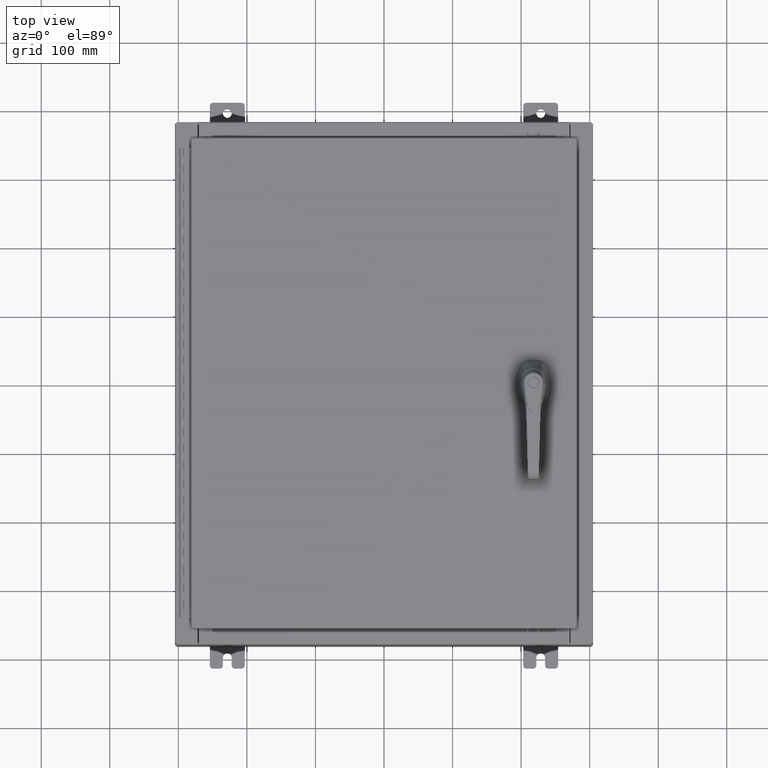
[diagram: clean part render]
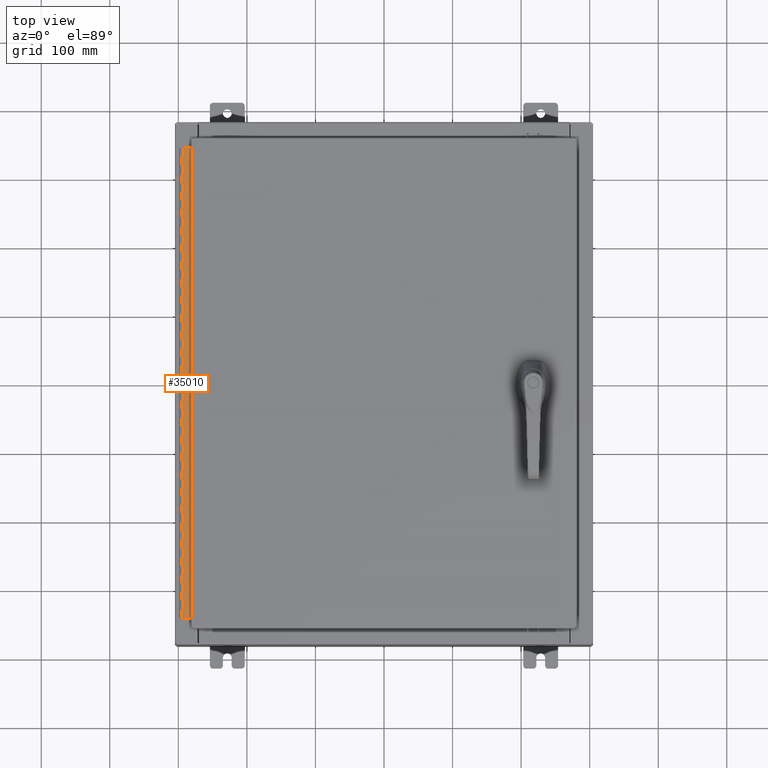
[diagram: same view with one face highlighted and labeled with its STEP entity id]
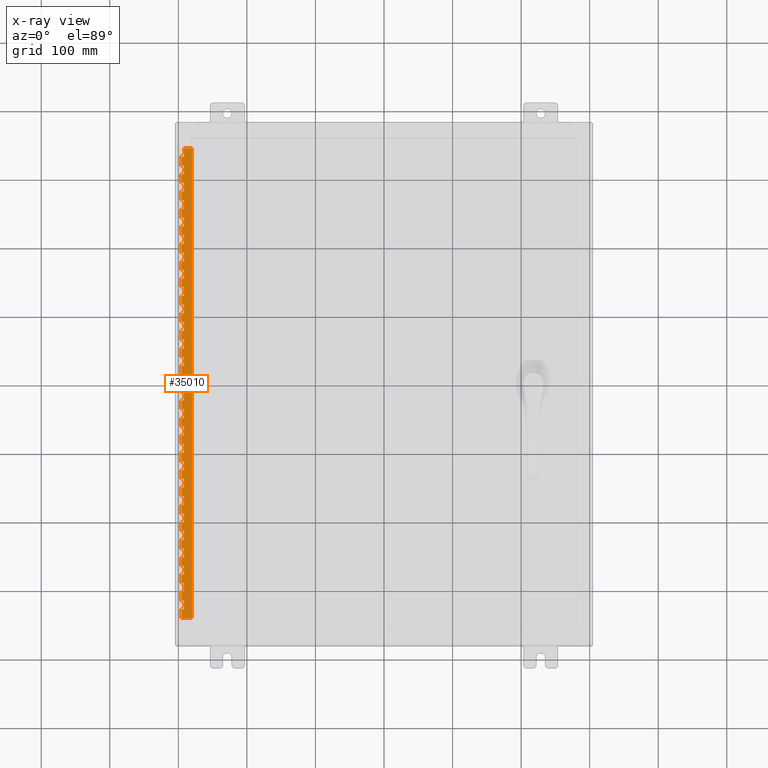
[diagram: x-ray of the same camera — body ghosted, the highlighted face saturated]
A machine part, top view. The second image highlights one B-rep face of the part: STEP entity #35010.
The next image is the same camera in x-ray: the body ghosted, the highlighted face saturated — about 0% of this face is hidden behind the body in this view.
In plain terms, the highlighted planar face has unit normal (-0, -0, 1).
Its self-contained STEP definition (entity closure, byte-faithful):
#110 = CARTESIAN_POINT ( 'NONE',  ( -0.6869999999999982800, 0.5504999999999997700, -24.99999999999999600 ) ) ;
#311 = EDGE_CURVE ( 'NONE', #1426, #79440, #106416, .T. ) ;
#456 = VERTEX_POINT ( 'NONE', #18760 ) ;
#464 = CARTESIAN_POINT ( 'NONE',  ( -0.6869999999999978300, 0.6754999999999996600, -10.00000000000000000 ) ) ;
#694 = CARTESIAN_POINT ( 'NONE',  ( -0.6869999999999973900, 0.8004999999999995500, -2.999999999999999600 ) ) ;
#875 = ORIENTED_EDGE ( 'NONE', *, *, #81364, .F. ) ;
#910 = VERTEX_POINT ( 'NONE', #63204 ) ;
#925 = CARTESIAN_POINT ( 'NONE',  ( -0.6869999999999973900, 0.8004999999999995500, -21.00000000000000000 ) ) ;
#1213 = EDGE_CURVE ( 'NONE', #70031, #62153, #111106, .T. ) ;
#1227 = LINE ( 'NONE', #107150, #95655 ) ;
#1269 = VERTEX_POINT ( 'NONE', #97721 ) ;
#1387 = CARTESIAN_POINT ( 'NONE',  ( -0.6869999999999978300, 0.6754999999999996600, -18.50000000000000000 ) ) ;
#1426 = VERTEX_POINT ( 'NONE', #23027 ) ;
#1431 = CARTESIAN_POINT ( 'NONE',  ( -0.6869999999999973900, 0.8004999999999995500, -9.500000000000000000 ) ) ;
#1435 = VERTEX_POINT ( 'NONE', #7705 ) ;
#1445 = EDGE_CURVE ( 'NONE', #14026, #910, #96713, .T. ) ;
#1558 = CARTESIAN_POINT ( 'NONE',  ( -0.6869999999999982800, 0.5504999999999997700, -26.50000000000000400 ) ) ;
#1624 = EDGE_CURVE ( 'NONE', #2235, #77221, #88102, .T. ) ;
#1691 = DIRECTION ( 'NONE',  ( 0.0000000000000000000, -0.0000000000000000000, -1.000000000000000000 ) ) ;
#1804 = CARTESIAN_POINT ( 'NONE',  ( -0.6869999999999973900, 0.8004999999999995500, -18.50000000000000000 ) ) ;
#1873 = CARTESIAN_POINT ( 'NONE',  ( -0.6869999999999978300, 0.6754999999999996600, -23.50000000000000000 ) ) ;
#2235 = VERTEX_POINT ( 'NONE', #6972 ) ;
#2291 = CARTESIAN_POINT ( 'NONE',  ( -0.6869999999999982800, 0.5504999999999997700, -24.50000000000000000 ) ) ;
#2427 = LINE ( 'NONE', #38659, #96882 ) ;
#2880 = VECTOR ( 'NONE', #90466, 39.37007874015748100 ) ;
#2881 = CARTESIAN_POINT ( 'NONE',  ( -0.6869999999999982800, 0.5504999999999997700, -15.50000000000000000 ) ) ;
#3015 = VECTOR ( 'NONE', #53264, 39.37007874015748100 ) ;
#3127 = CARTESIAN_POINT ( 'NONE',  ( -0.6869999999999982800, 0.5504999999999997700, -23.50000000000000000 ) ) ;
#3250 = EDGE_CURVE ( 'NONE', #3337, #38287, #14932, .T. ) ;
#3277 = VERTEX_POINT ( 'NONE', #84391 ) ;
#3337 = VERTEX_POINT ( 'NONE', #73401 ) ;
#3353 = DIRECTION ( 'NONE',  ( 0.0000000000000000000, 0.0000000000000000000, 1.000000000000000000 ) ) ;
#3480 = CARTESIAN_POINT ( 'NONE',  ( -0.6869999999999978300, 0.6754999999999996600, -8.000000000000000000 ) ) ;
#3787 = EDGE_CURVE ( 'NONE', #42718, #106952, #37694, .T. ) ;
#3848 = VECTOR ( 'NONE', #115935, 39.37007874015748100 ) ;
#3886 = DIRECTION ( 'NONE',  ( 0.0000000000000000000, -0.0000000000000000000, -1.000000000000000000 ) ) ;
#4503 = LINE ( 'NONE', #98030, #28859 ) ;
#4506 = LINE ( 'NONE', #90446, #74582 ) ;
#4669 = ORIENTED_EDGE ( 'NONE', *, *, #1213, .F. ) ;
#4772 = EDGE_CURVE ( 'NONE', #77386, #52016, #53253, .T. ) ;
#4914 = ORIENTED_EDGE ( 'NONE', *, *, #99446, .F. ) ;
#4990 = DIRECTION ( 'NONE',  ( 0.0000000000000000000, 0.0000000000000000000, 1.000000000000000000 ) ) ;
#5046 = ORIENTED_EDGE ( 'NONE', *, *, #60294, .T. ) ;
#5187 = EDGE_CURVE ( 'NONE', #17093, #34693, #8937, .T. ) ;
#5190 = EDGE_CURVE ( 'NONE', #84785, #83833, #33228, .T. ) ;
#5232 = DIRECTION ( 'NONE',  ( 3.389037039080723100E-015, 1.000000000000000000, -0.0000000000000000000 ) ) ;
#5483 = EDGE_CURVE ( 'NONE', #81528, #35725, #64630, .T. ) ;
#5507 = CARTESIAN_POINT ( 'NONE',  ( -0.6869999999999978300, 0.6754999999999996600, -21.50000000000000400 ) ) ;
#5549 = ORIENTED_EDGE ( 'NONE', *, *, #56456, .F. ) ;
#5648 = EDGE_CURVE ( 'NONE', #82315, #84785, #7415, .T. ) ;
#6002 = LINE ( 'NONE', #925, #94691 ) ;
#6185 = CARTESIAN_POINT ( 'NONE',  ( -0.6869999999999978300, 0.6754999999999996600, -19.00000000000000000 ) ) ;
#6212 = CARTESIAN_POINT ( 'NONE',  ( -0.6869999999999982800, 0.5504999999999997700, -22.50000000000000000 ) ) ;
#6286 = LINE ( 'NONE', #32577, #76369 ) ;
#6300 = CARTESIAN_POINT ( 'NONE',  ( -0.6869999999999982800, 0.5504999999999997700, -20.50000000000000400 ) ) ;
#6323 = CARTESIAN_POINT ( 'NONE',  ( -0.6869999999999982800, 0.5504999999999997700, -6.000000000000000900 ) ) ;
#6526 = CARTESIAN_POINT ( 'NONE',  ( -0.6869999999999978300, 0.6754999999999996600, -27.00000000000000000 ) ) ;
#6972 = CARTESIAN_POINT ( 'NONE',  ( -0.6869999999999982800, 0.5504999999999997700, -4.000000000000000000 ) ) ;
#7268 = EDGE_CURVE ( 'NONE', #81528, #96550, #36022, .T. ) ;
#7321 = VECTOR ( 'NONE', #36206, 39.37007874015748100 ) ;
#7415 = LINE ( 'NONE', #53604, #53131 ) ;
#7521 = DIRECTION ( 'NONE',  ( 0.0000000000000000000, 0.0000000000000000000, 1.000000000000000000 ) ) ;
#7705 = CARTESIAN_POINT ( 'NONE',  ( -0.6869999999999982800, 0.5504999999999997700, -20.00000000000000000 ) ) ;
#7875 = EDGE_CURVE ( 'NONE', #35725, #25831, #53032, .T. ) ;
#7906 = VERTEX_POINT ( 'NONE', #12865 ) ;
#7926 = VERTEX_POINT ( 'NONE', #58727 ) ;
#7931 = EDGE_CURVE ( 'NONE', #72542, #113981, #96031, .T. ) ;
#7983 = DIRECTION ( 'NONE',  ( 3.389037039080723100E-015, 1.000000000000000000, -0.0000000000000000000 ) ) ;
#8130 = CARTESIAN_POINT ( 'NONE',  ( -0.6869999999999982800, 0.5504999999999997700, -17.50000000000000000 ) ) ;
#8200 = VERTEX_POINT ( 'NONE', #15597 ) ;
#8605 = CARTESIAN_POINT ( 'NONE',  ( -0.6869999999999973900, 0.8004999999999995500, -1.000000000000000000 ) ) ;
#8852 = VECTOR ( 'NONE', #38893, 39.37007874015748100 ) ;
#8937 = LINE ( 'NONE', #30692, #57518 ) ;
#9000 = VECTOR ( 'NONE', #47719, 39.37007874015748100 ) ;
#9283 = ORIENTED_EDGE ( 'NONE', *, *, #79516, .F. ) ;
#9646 = EDGE_CURVE ( 'NONE', #98769, #100059, #71419, .T. ) ;
#9652 = CARTESIAN_POINT ( 'NONE',  ( -0.6869999999999973900, 0.8004999999999995500, -13.50000000000000000 ) ) ;
#9816 = ORIENTED_EDGE ( 'NONE', *, *, #71836, .F. ) ;
#9993 = DIRECTION ( 'NONE',  ( 0.0000000000000000000, 0.0000000000000000000, 1.000000000000000000 ) ) ;
#10016 = VECTOR ( 'NONE', #57942, 39.37007874015748100 ) ;
#10018 = CARTESIAN_POINT ( 'NONE',  ( -0.6869999999999973900, 0.8004999999999995500, -17.99999999999999600 ) ) ;
#10107 = LINE ( 'NONE', #2881, #55815 ) ;
#10200 = VERTEX_POINT ( 'NONE', #1387 ) ;
#10849 = VERTEX_POINT ( 'NONE', #38411 ) ;
#10919 = CARTESIAN_POINT ( 'NONE',  ( -0.6869999999999982800, 0.5504999999999997700, -5.500000000000000000 ) ) ;
#11047 = CARTESIAN_POINT ( 'NONE',  ( -0.6869999999999973900, 0.8004999999999995500, -19.00000000000000000 ) ) ;
#11251 = CARTESIAN_POINT ( 'NONE',  ( -0.6869999999999973900, 0.8004999999999995500, -2.500000000000000000 ) ) ;
#11457 = VECTOR ( 'NONE', #84208, 39.37007874015748100 ) ;
#11611 = VERTEX_POINT ( 'NONE', #63372 ) ;
#11822 = CARTESIAN_POINT ( 'NONE',  ( -0.6869999999999973900, 0.8004999999999995500, -8.000000000000000000 ) ) ;
#12211 = AXIS2_PLACEMENT_3D ( 'NONE', #106415, #51537, #115644 ) ;
#12251 = VECTOR ( 'NONE', #45638, 39.37007874015748100 ) ;
#12266 = CARTESIAN_POINT ( 'NONE',  ( -0.6869999999999978300, 0.6754999999999996600, -27.00000000000000000 ) ) ;
#12365 = ORIENTED_EDGE ( 'NONE', *, *, #115597, .F. ) ;
#12524 = CARTESIAN_POINT ( 'NONE',  ( -0.6869999999999982800, 0.5504999999999997700, -11.00000000000000000 ) ) ;
#12612 = CARTESIAN_POINT ( 'NONE',  ( -0.6869999999999973900, 0.8004999999999995500, -10.00000000000000000 ) ) ;
#12685 = EDGE_CURVE ( 'NONE', #10200, #94098, #21071, .T. ) ;
#12730 = CARTESIAN_POINT ( 'NONE',  ( -0.6869999999999978300, 0.6754999999999996600, -26.50000000000000400 ) ) ;
#12865 = CARTESIAN_POINT ( 'NONE',  ( -0.6869999999999978300, 0.6754999999999996600, -21.00000000000000000 ) ) ;
#12948 = EDGE_CURVE ( 'NONE', #77386, #68516, #78774, .T. ) ;
#12982 = VERTEX_POINT ( 'NONE', #13166 ) ;
#13166 = CARTESIAN_POINT ( 'NONE',  ( -0.6869999999999982800, 0.5504999999999997700, -27.00000000000000000 ) ) ;
#13176 = CARTESIAN_POINT ( 'NONE',  ( -0.6869999999999982800, 0.5504999999999997700, -8.500000000000000000 ) ) ;
#13219 = VERTEX_POINT ( 'NONE', #115906 ) ;
#13420 = VERTEX_POINT ( 'NONE', #82642 ) ;
#13793 = LINE ( 'NONE', #46689, #83868 ) ;
#14026 = VERTEX_POINT ( 'NONE', #31272 ) ;
#14353 = LINE ( 'NONE', #1804, #11457 ) ;
#14503 = ORIENTED_EDGE ( 'NONE', *, *, #82621, .F. ) ;
#14518 = ORIENTED_EDGE ( 'NONE', *, *, #61449, .T. ) ;
#14563 = LINE ( 'NONE', #93963, #84629 ) ;
#14737 = EDGE_CURVE ( 'NONE', #63661, #113869, #57034, .T. ) ;
#14865 = PLANE ( 'NONE',  #12211 ) ;
#14932 = LINE ( 'NONE', #24609, #87868 ) ;
#14962 = EDGE_CURVE ( 'NONE', #42131, #90389, #88535, .T. ) ;
#15109 = CARTESIAN_POINT ( 'NONE',  ( -0.6869999999999973900, 0.8004999999999995500, -8.500000000000000000 ) ) ;
#15597 = CARTESIAN_POINT ( 'NONE',  ( -0.6869999999999978300, 0.6754999999999996600, -14.49999999999999800 ) ) ;
#15689 = VERTEX_POINT ( 'NONE', #38865 ) ;
#15827 = VERTEX_POINT ( 'NONE', #69995 ) ;
#15957 = LINE ( 'NONE', #108123, #101774 ) ;
#16061 = ORIENTED_EDGE ( 'NONE', *, *, #34873, .F. ) ;
#16163 = VECTOR ( 'NONE', #19716, 39.37007874015748100 ) ;
#16344 = CARTESIAN_POINT ( 'NONE',  ( -0.6869999999999978300, 0.6754999999999996600, -25.50000000000000400 ) ) ;
#16522 = DIRECTION ( 'NONE',  ( -3.389037039080723100E-015, -1.000000000000000000, 0.0000000000000000000 ) ) ;
#16569 = CARTESIAN_POINT ( 'NONE',  ( -0.6869999999999982800, 0.5504999999999997700, -1.499999999999999800 ) ) ;
#16686 = CARTESIAN_POINT ( 'NONE',  ( -0.6869999999999982800, 0.5504999999999997700, -19.50000000000000000 ) ) ;
#16694 = CARTESIAN_POINT ( 'NONE',  ( -0.6869999999999982800, 0.5504999999999997700, -25.50000000000000400 ) ) ;
#16961 = LINE ( 'NONE', #11047, #111423 ) ;
#17093 = VERTEX_POINT ( 'NONE', #63670 ) ;
#17300 = DIRECTION ( 'NONE',  ( -3.389037039080723100E-015, -1.000000000000000000, 0.0000000000000000000 ) ) ;
#17369 = VERTEX_POINT ( 'NONE', #87250 ) ;
#17511 = DIRECTION ( 'NONE',  ( -3.389037039080723100E-015, -1.000000000000000000, 0.0000000000000000000 ) ) ;
#17911 = DIRECTION ( 'NONE',  ( 0.0000000000000000000, 0.0000000000000000000, 1.000000000000000000 ) ) ;
#17930 = DIRECTION ( 'NONE',  ( 0.0000000000000000000, -0.0000000000000000000, -1.000000000000000000 ) ) ;
#17950 = DIRECTION ( 'NONE',  ( 0.0000000000000000000, 0.0000000000000000000, 1.000000000000000000 ) ) ;
#18023 = CARTESIAN_POINT ( 'NONE',  ( -0.6869999999999982800, 0.5504999999999997700, -1.499999999999999800 ) ) ;
#18439 = VERTEX_POINT ( 'NONE', #38300 ) ;
#18526 = VERTEX_POINT ( 'NONE', #116263 ) ;
#18561 = CARTESIAN_POINT ( 'NONE',  ( -0.6869999999999973900, 0.8004999999999995500, -22.50000000000000000 ) ) ;
#18760 = CARTESIAN_POINT ( 'NONE',  ( -0.6869999999999982800, 0.5504999999999997700, -2.999999999999999600 ) ) ;
#18854 = VERTEX_POINT ( 'NONE', #29008 ) ;
#18903 = VECTOR ( 'NONE', #111869, 39.37007874015748100 ) ;
#18914 = EDGE_CURVE ( 'NONE', #106952, #105154, #19426, .T. ) ;
#19102 = VECTOR ( 'NONE', #117040, 39.37007874015748100 ) ;
#19426 = LINE ( 'NONE', #93360, #111000 ) ;
#19468 = ORIENTED_EDGE ( 'NONE', *, *, #107621, .F. ) ;
#19534 = DIRECTION ( 'NONE',  ( 0.0000000000000000000, -0.0000000000000000000, -1.000000000000000000 ) ) ;
#19716 = DIRECTION ( 'NONE',  ( 0.0000000000000000000, -0.0000000000000000000, -1.000000000000000000 ) ) ;
#19824 = CARTESIAN_POINT ( 'NONE',  ( -0.6869999999999978300, 0.6754999999999996600, -17.99999999999999600 ) ) ;
#20003 = CARTESIAN_POINT ( 'NONE',  ( -0.6869999999999973900, 0.8004999999999995500, -17.00000000000000000 ) ) ;
#20092 = VERTEX_POINT ( 'NONE', #27779 ) ;
#20317 = VECTOR ( 'NONE', #7521, 39.37007874015748100 ) ;
#20319 = ORIENTED_EDGE ( 'NONE', *, *, #1445, .F. ) ;
#20338 = ORIENTED_EDGE ( 'NONE', *, *, #95394, .F. ) ;
#20339 = DIRECTION ( 'NONE',  ( 0.0000000000000000000, -0.0000000000000000000, -1.000000000000000000 ) ) ;
#20393 = EDGE_CURVE ( 'NONE', #52016, #67025, #6286, .T. ) ;
#20548 = VERTEX_POINT ( 'NONE', #6185 ) ;
#20920 = DIRECTION ( 'NONE',  ( -3.389037039080723100E-015, -1.000000000000000000, 0.0000000000000000000 ) ) ;
#21071 = LINE ( 'NONE', #45021, #88243 ) ;
#21406 = ORIENTED_EDGE ( 'NONE', *, *, #80883, .F. ) ;
#21426 = DIRECTION ( 'NONE',  ( 0.0000000000000000000, -0.0000000000000000000, -1.000000000000000000 ) ) ;
#21612 = EDGE_CURVE ( 'NONE', #55233, #63969, #107747, .T. ) ;
#21679 = VERTEX_POINT ( 'NONE', #102880 ) ;
#21859 = CARTESIAN_POINT ( 'NONE',  ( -0.6869999999999978300, 0.6754999999999996600, -27.00000000000000000 ) ) ;
#21893 = LINE ( 'NONE', #31079, #116316 ) ;
#22100 = DIRECTION ( 'NONE',  ( 0.0000000000000000000, -0.0000000000000000000, -1.000000000000000000 ) ) ;
#22173 = VERTEX_POINT ( 'NONE', #1558 ) ;
#22189 = EDGE_CURVE ( 'NONE', #84491, #54880, #70345, .T. ) ;
#22953 = LINE ( 'NONE', #29376, #48413 ) ;
#23027 = CARTESIAN_POINT ( 'NONE',  ( -0.6869999999999982800, 0.5504999999999997700, -16.00000000000000000 ) ) ;
#23114 = VECTOR ( 'NONE', #67898, 39.37007874015748100 ) ;
#23314 = EDGE_CURVE ( 'NONE', #29773, #55216, #15957, .T. ) ;
#23684 = ORIENTED_EDGE ( 'NONE', *, *, #90245, .T. ) ;
#24018 = ORIENTED_EDGE ( 'NONE', *, *, #103752, .T. ) ;
#24092 = ORIENTED_EDGE ( 'NONE', *, *, #28834, .F. ) ;
#24227 = EDGE_CURVE ( 'NONE', #29773, #27673, #57415, .T. ) ;
#24363 = VECTOR ( 'NONE', #63291, 39.37007874015748100 ) ;
#24598 = LINE ( 'NONE', #78191, #104652 ) ;
#24609 = CARTESIAN_POINT ( 'NONE',  ( -0.6869999999999982800, 0.5504999999999997700, -14.49999999999999800 ) ) ;
#24661 = CARTESIAN_POINT ( 'NONE',  ( -0.6869999999999973900, 0.8004999999999995500, -23.50000000000000000 ) ) ;
#24700 = VECTOR ( 'NONE', #17911, 39.37007874015748100 ) ;
#25220 = CARTESIAN_POINT ( 'NONE',  ( -0.6869999999999982800, 0.5504999999999997700, -21.50000000000000400 ) ) ;
#25831 = VERTEX_POINT ( 'NONE', #46585 ) ;
#25880 = CARTESIAN_POINT ( 'NONE',  ( -0.6869999999999982800, 0.5504999999999997700, -17.50000000000000000 ) ) ;
#26042 = CARTESIAN_POINT ( 'NONE',  ( -0.6869999999999982800, 0.5504999999999997700, -14.99999999999999800 ) ) ;
#26211 = LINE ( 'NONE', #89989, #71900 ) ;
#26251 = EDGE_CURVE ( 'NONE', #113909, #98769, #27385, .T. ) ;
#26460 = DIRECTION ( 'NONE',  ( 3.389037039080723100E-015, 1.000000000000000000, -0.0000000000000000000 ) ) ;
#26595 = VECTOR ( 'NONE', #82276, 39.37007874015748100 ) ;
#27068 = CARTESIAN_POINT ( 'NONE',  ( -0.6869999999999978300, 0.6754999999999996600, -27.00000000000000000 ) ) ;
#27306 = CARTESIAN_POINT ( 'NONE',  ( -0.6869999999999978300, 0.6754999999999996600, -20.50000000000000400 ) ) ;
#27385 = LINE ( 'NONE', #98931, #3015 ) ;
#27537 = VERTEX_POINT ( 'NONE', #69738 ) ;
#27575 = DIRECTION ( 'NONE',  ( 0.0000000000000000000, 0.0000000000000000000, 1.000000000000000000 ) ) ;
#27594 = VECTOR ( 'NONE', #49404, 39.37007874015748100 ) ;
#27673 = VERTEX_POINT ( 'NONE', #89375 ) ;
#27779 = CARTESIAN_POINT ( 'NONE',  ( -0.6869999999999982800, 0.5504999999999997700, -6.499999999999999100 ) ) ;
#28392 = CARTESIAN_POINT ( 'NONE',  ( -0.6869999999999978300, 0.6754999999999996600, -27.00000000000000000 ) ) ;
#28432 = VECTOR ( 'NONE', #50994, 39.37007874015748100 ) ;
#28435 = VECTOR ( 'NONE', #97043, 39.37007874015748100 ) ;
#28685 = CARTESIAN_POINT ( 'NONE',  ( -0.6869999999999982800, 0.5504999999999997700, -10.50000000000000000 ) ) ;
#28736 = CARTESIAN_POINT ( 'NONE',  ( -0.6869999999999978300, 0.6754999999999996600, -14.00000000000000000 ) ) ;
#28834 = EDGE_CURVE ( 'NONE', #36408, #97584, #83051, .T. ) ;
#28854 = EDGE_CURVE ( 'NONE', #91292, #78326, #107364, .T. ) ;
#28859 = VECTOR ( 'NONE', #43175, 39.37007874015748100 ) ;
#29008 = CARTESIAN_POINT ( 'NONE',  ( -0.6869999999999982800, 0.5504999999999997700, -12.49999999999999800 ) ) ;
#29028 = VECTOR ( 'NONE', #73219, 39.37007874015748100 ) ;
#29170 = DIRECTION ( 'NONE',  ( 3.389037039080723100E-015, 1.000000000000000000, -0.0000000000000000000 ) ) ;
#29249 = EDGE_CURVE ( 'NONE', #10200, #63661, #14353, .T. ) ;
#29283 = CARTESIAN_POINT ( 'NONE',  ( -0.6869999999999973900, 0.8004999999999995500, -23.00000000000000000 ) ) ;
#29299 = EDGE_CURVE ( 'NONE', #83833, #61974, #81534, .T. ) ;
#29317 = ORIENTED_EDGE ( 'NONE', *, *, #78355, .F. ) ;
#29376 = CARTESIAN_POINT ( 'NONE',  ( -0.6869999999999973900, 0.8004999999999995500, -11.50000000000000000 ) ) ;
#29548 = EDGE_CURVE ( 'NONE', #8200, #3337, #94381, .T. ) ;
#29584 = VECTOR ( 'NONE', #66908, 39.37007874015748100 ) ;
#29773 = VERTEX_POINT ( 'NONE', #105619 ) ;
#29889 = DIRECTION ( 'NONE',  ( 0.0000000000000000000, -0.0000000000000000000, -1.000000000000000000 ) ) ;
#30065 = VERTEX_POINT ( 'NONE', #108775 ) ;
#30555 = VECTOR ( 'NONE', #64747, 39.37007874015748100 ) ;
#30590 = EDGE_CURVE ( 'NONE', #36075, #78428, #98518, .T. ) ;
#30692 = CARTESIAN_POINT ( 'NONE',  ( -0.6869999999999982800, 0.5504999999999997700, -13.50000000000000000 ) ) ;
#30921 = ORIENTED_EDGE ( 'NONE', *, *, #22189, .F. ) ;
#31079 = CARTESIAN_POINT ( 'NONE',  ( -0.6869999999999982800, 0.5504999999999997700, -9.500000000000000000 ) ) ;
#31206 = VERTEX_POINT ( 'NONE', #37850 ) ;
#31272 = CARTESIAN_POINT ( 'NONE',  ( -0.6869999999999982800, 0.5504999999999997700, -4.500000000000000000 ) ) ;
#31388 = EDGE_CURVE ( 'NONE', #82315, #18439, #61535, .T. ) ;
#31976 = VECTOR ( 'NONE', #29889, 39.37007874015748100 ) ;
#32062 = EDGE_CURVE ( 'NONE', #100866, #45072, #70035, .T. ) ;
#32087 = DIRECTION ( 'NONE',  ( 0.0000000000000000000, 0.0000000000000000000, 1.000000000000000000 ) ) ;
#32480 = VECTOR ( 'NONE', #104709, 39.37007874015748100 ) ;
#32577 = CARTESIAN_POINT ( 'NONE',  ( -0.6869999999999982800, 0.5504999999999997700, -22.50000000000000000 ) ) ;
#32797 = EDGE_CURVE ( 'NONE', #11611, #20092, #59954, .T. ) ;
#32915 = CARTESIAN_POINT ( 'NONE',  ( -0.6869999999999982800, 0.5504999999999997700, -12.99999999999999800 ) ) ;
#33051 = DIRECTION ( 'NONE',  ( -3.389037039080723100E-015, -1.000000000000000000, 0.0000000000000000000 ) ) ;
#33228 = LINE ( 'NONE', #39838, #60376 ) ;
#33244 = CARTESIAN_POINT ( 'NONE',  ( -0.6869999999999973900, 0.8004999999999995500, -25.50000000000000400 ) ) ;
#33532 = LINE ( 'NONE', #55141, #109436 ) ;
#34141 = LINE ( 'NONE', #80307, #61276 ) ;
#34176 = EDGE_CURVE ( 'NONE', #910, #7926, #104212, .T. ) ;
#34202 = CARTESIAN_POINT ( 'NONE',  ( -0.6869999999999978300, 0.6754999999999996600, -26.00000000000000000 ) ) ;
#34311 = DIRECTION ( 'NONE',  ( 0.0000000000000000000, -0.0000000000000000000, -1.000000000000000000 ) ) ;
#34337 = VECTOR ( 'NONE', #97446, 39.37007874015748100 ) ;
#34498 = VECTOR ( 'NONE', #117053, 39.37007874015748100 ) ;
#34693 = VERTEX_POINT ( 'NONE', #51624 ) ;
#34709 = CARTESIAN_POINT ( 'NONE',  ( -0.6869999999999978300, 0.6754999999999996600, -27.00000000000000000 ) ) ;
#34854 = LINE ( 'NONE', #76798, #83548 ) ;
#34873 = EDGE_CURVE ( 'NONE', #1435, #96550, #63978, .T. ) ;
#34996 = VERTEX_POINT ( 'NONE', #106033 ) ;
#35010 = ADVANCED_FACE ( 'NONE', ( #55402 ), #14865, .T. ) ;
#35011 = DIRECTION ( 'NONE',  ( 3.389037039080723100E-015, 1.000000000000000000, -0.0000000000000000000 ) ) ;
#35059 = CARTESIAN_POINT ( 'NONE',  ( -0.6869999999999978300, 0.6754999999999996600, -27.00000000000000000 ) ) ;
#35223 = EDGE_CURVE ( 'NONE', #13219, #61813, #98340, .T. ) ;
#35508 = EDGE_CURVE ( 'NONE', #20092, #10849, #81146, .T. ) ;
#35565 = CARTESIAN_POINT ( 'NONE',  ( -0.6869999999999973900, 0.8004999999999995500, -10.50000000000000000 ) ) ;
#35663 = VERTEX_POINT ( 'NONE', #5507 ) ;
#35725 = VERTEX_POINT ( 'NONE', #6300 ) ;
#35851 = EDGE_CURVE ( 'NONE', #113909, #37777, #104007, .T. ) ;
#35964 = EDGE_CURVE ( 'NONE', #83102, #42718, #101114, .T. ) ;
#36018 = LINE ( 'NONE', #56204, #109045 ) ;
#36022 = LINE ( 'NONE', #59231, #84695 ) ;
#36075 = VERTEX_POINT ( 'NONE', #93112 ) ;
#36206 = DIRECTION ( 'NONE',  ( 0.0000000000000000000, 0.0000000000000000000, 1.000000000000000000 ) ) ;
#36347 = DIRECTION ( 'NONE',  ( 0.0000000000000000000, -0.0000000000000000000, -1.000000000000000000 ) ) ;
#36365 = CARTESIAN_POINT ( 'NONE',  ( -0.6869999999999978300, 0.6754999999999996600, -7.499999999999999100 ) ) ;
#36408 = VERTEX_POINT ( 'NONE', #61742 ) ;
#36449 = ORIENTED_EDGE ( 'NONE', *, *, #31388, .T. ) ;
#36567 = VECTOR ( 'NONE', #75407, 39.37007874015748100 ) ;
#36647 = VECTOR ( 'NONE', #43733, 39.37007874015748100 ) ;
#37266 = CARTESIAN_POINT ( 'NONE',  ( -0.6869999999999973900, 0.8004999999999995500, -26.00000000000000000 ) ) ;
#37282 = VECTOR ( 'NONE', #57769, 39.37007874015748100 ) ;
#37340 = ORIENTED_EDGE ( 'NONE', *, *, #40424, .F. ) ;
#37456 = DIRECTION ( 'NONE',  ( 0.0000000000000000000, -0.0000000000000000000, -1.000000000000000000 ) ) ;
#37694 = LINE ( 'NONE', #2291, #31976 ) ;
#37777 = VERTEX_POINT ( 'NONE', #38485 ) ;
#37850 = CARTESIAN_POINT ( 'NONE',  ( -0.6869999999999978300, 0.6754999999999996600, -2.500000000000000000 ) ) ;
#37991 = CARTESIAN_POINT ( 'NONE',  ( -0.6869999999999998300, 0.07549999999999991400, -27.00000000000000000 ) ) ;
#38038 = VECTOR ( 'NONE', #5232, 39.37007874015748100 ) ;
#38164 = VECTOR ( 'NONE', #53899, 39.37007874015748100 ) ;
#38207 = DIRECTION ( 'NONE',  ( -3.389037039080723100E-015, -1.000000000000000000, 0.0000000000000000000 ) ) ;
#38287 = VERTEX_POINT ( 'NONE', #26042 ) ;
#38300 = CARTESIAN_POINT ( 'NONE',  ( -0.6869999999999978300, 0.6754999999999996600, -7.000000000000000000 ) ) ;
#38411 = CARTESIAN_POINT ( 'NONE',  ( -0.6869999999999982800, 0.5504999999999997700, -7.000000000000000000 ) ) ;
#38485 = CARTESIAN_POINT ( 'NONE',  ( -0.6869999999999978300, 0.6754999999999996600, 0.0000000000000000000 ) ) ;
#38537 = VECTOR ( 'NONE', #59890, 39.37007874015748100 ) ;
#38565 = CARTESIAN_POINT ( 'NONE',  ( -0.6869999999999982800, 0.5504999999999997700, -8.500000000000000000 ) ) ;
#38659 = CARTESIAN_POINT ( 'NONE',  ( -0.6869999999999982800, 0.5504999999999997700, -23.50000000000000000 ) ) ;
#38772 = VECTOR ( 'NONE', #16522, 39.37007874015748100 ) ;
#38840 = EDGE_CURVE ( 'NONE', #78428, #1435, #70633, .T. ) ;
#38865 = CARTESIAN_POINT ( 'NONE',  ( -0.6869999999999978300, 0.6754999999999996600, -5.500000000000000000 ) ) ;
#38893 = DIRECTION ( 'NONE',  ( -3.389037039080723100E-015, -1.000000000000000000, 0.0000000000000000000 ) ) ;
#39478 = EDGE_CURVE ( 'NONE', #17369, #17093, #103547, .T. ) ;
#39519 = ORIENTED_EDGE ( 'NONE', *, *, #67382, .F. ) ;
#39838 = CARTESIAN_POINT ( 'NONE',  ( -0.6869999999999982800, 0.5504999999999997700, -7.499999999999999100 ) ) ;
#39903 = EDGE_CURVE ( 'NONE', #67025, #113981, #83478, .T. ) ;
#40091 = VERTEX_POINT ( 'NONE', #87191 ) ;
#40254 = DIRECTION ( 'NONE',  ( 0.0000000000000000000, 0.0000000000000000000, 1.000000000000000000 ) ) ;
#40313 = VECTOR ( 'NONE', #70531, 39.37007874015748100 ) ;
#40424 = EDGE_CURVE ( 'NONE', #70135, #456, #46084, .T. ) ;
#40443 = EDGE_CURVE ( 'NONE', #90389, #99234, #21893, .T. ) ;
#40855 = ORIENTED_EDGE ( 'NONE', *, *, #49577, .T. ) ;
#41053 = VECTOR ( 'NONE', #117957, 39.37007874015748100 ) ;
#41168 = ORIENTED_EDGE ( 'NONE', *, *, #23314, .T. ) ;
#41260 = ORIENTED_EDGE ( 'NONE', *, *, #40443, .F. ) ;
#41302 = EDGE_CURVE ( 'NONE', #25831, #7906, #6002, .T. ) ;
#41603 = EDGE_CURVE ( 'NONE', #15689, #66476, #4506, .T. ) ;
#41818 = ORIENTED_EDGE ( 'NONE', *, *, #63520, .F. ) ;
#41851 = LINE ( 'NONE', #21859, #112072 ) ;
#42131 = VERTEX_POINT ( 'NONE', #50689 ) ;
#42203 = EDGE_CURVE ( 'NONE', #456, #61813, #116095, .T. ) ;
#42354 = LINE ( 'NONE', #24661, #36647 ) ;
#42474 = VECTOR ( 'NONE', #64719, 39.37007874015748100 ) ;
#42718 = VERTEX_POINT ( 'NONE', #45576 ) ;
#42746 = CARTESIAN_POINT ( 'NONE',  ( -0.6869999999999982800, 0.5504999999999997700, -23.99999999999999600 ) ) ;
#42849 = DIRECTION ( 'NONE',  ( 0.0000000000000000000, 0.0000000000000000000, 1.000000000000000000 ) ) ;
#42887 = CARTESIAN_POINT ( 'NONE',  ( -0.6869999999999978300, 0.6754999999999996600, -27.00000000000000000 ) ) ;
#43135 = ORIENTED_EDGE ( 'NONE', *, *, #88012, .F. ) ;
#43175 = DIRECTION ( 'NONE',  ( 3.389037039080723100E-015, 1.000000000000000000, -0.0000000000000000000 ) ) ;
#43285 = LINE ( 'NONE', #52927, #19102 ) ;
#43485 = VECTOR ( 'NONE', #82405, 39.37007874015748100 ) ;
#43733 = DIRECTION ( 'NONE',  ( -3.389037039080723100E-015, -1.000000000000000000, 0.0000000000000000000 ) ) ;
#43771 = CARTESIAN_POINT ( 'NONE',  ( -0.6869999999999973900, 0.8004999999999995500, -2.000000000000000000 ) ) ;
#44046 = LINE ( 'NONE', #107432, #87033 ) ;
#44124 = ORIENTED_EDGE ( 'NONE', *, *, #29249, .F. ) ;
#44223 = EDGE_CURVE ( 'NONE', #93463, #30065, #82322, .T. ) ;
#44318 = ORIENTED_EDGE ( 'NONE', *, *, #20393, .F. ) ;
#44345 = DIRECTION ( 'NONE',  ( 3.389037039080723100E-015, 1.000000000000000000, -0.0000000000000000000 ) ) ;
#44461 = LINE ( 'NONE', #80463, #38772 ) ;
#44731 = DIRECTION ( 'NONE',  ( -3.389037039080723100E-015, -1.000000000000000000, 0.0000000000000000000 ) ) ;
#45021 = CARTESIAN_POINT ( 'NONE',  ( -0.6869999999999978300, 0.6754999999999996600, -27.00000000000000000 ) ) ;
#45072 = VERTEX_POINT ( 'NONE', #16694 ) ;
#45096 = CARTESIAN_POINT ( 'NONE',  ( -0.6869999999999978300, 0.6754999999999996600, -27.00000000000000000 ) ) ;
#45134 = CARTESIAN_POINT ( 'NONE',  ( -0.6869999999999978300, 0.6754999999999996600, -23.00000000000000000 ) ) ;
#45206 = CARTESIAN_POINT ( 'NONE',  ( -0.6869999999999982800, 0.5504999999999997700, -2.500000000000000000 ) ) ;
#45576 = CARTESIAN_POINT ( 'NONE',  ( -0.6869999999999982800, 0.5504999999999997700, -24.50000000000000000 ) ) ;
#45598 = EDGE_CURVE ( 'NONE', #34693, #77974, #102185, .T. ) ;
#45638 = DIRECTION ( 'NONE',  ( 3.389037039080723100E-015, 1.000000000000000000, -0.0000000000000000000 ) ) ;
#45713 = VECTOR ( 'NONE', #88058, 39.37007874015748100 ) ;
#45778 = ORIENTED_EDGE ( 'NONE', *, *, #84182, .T. ) ;
#45912 = ORIENTED_EDGE ( 'NONE', *, *, #107850, .T. ) ;
#46084 = LINE ( 'NONE', #104270, #27594 ) ;
#46122 = CARTESIAN_POINT ( 'NONE',  ( -0.6869999999999973900, 0.8004999999999995500, -1.499999999999999800 ) ) ;
#46292 = EDGE_CURVE ( 'NONE', #45072, #70031, #64812, .T. ) ;
#46311 = VECTOR ( 'NONE', #71359, 39.37007874015748100 ) ;
#46430 = DIRECTION ( 'NONE',  ( 3.389037039080723100E-015, 1.000000000000000000, -0.0000000000000000000 ) ) ;
#46585 = CARTESIAN_POINT ( 'NONE',  ( -0.6869999999999982800, 0.5504999999999997700, -21.00000000000000000 ) ) ;
#46682 = ORIENTED_EDGE ( 'NONE', *, *, #41603, .F. ) ;
#46689 = CARTESIAN_POINT ( 'NONE',  ( -0.6869999999999978300, 0.6754999999999996600, -27.00000000000000000 ) ) ;
#47024 = CARTESIAN_POINT ( 'NONE',  ( -0.6869999999999982800, 0.5504999999999997700, -8.000000000000000000 ) ) ;
#47092 = CARTESIAN_POINT ( 'NONE',  ( -0.6869999999999982800, 0.5504999999999997700, -9.500000000000000000 ) ) ;
#47439 = CARTESIAN_POINT ( 'NONE',  ( -0.6869999999999978300, 0.6754999999999996600, -2.999999999999999600 ) ) ;
#47634 = DIRECTION ( 'NONE',  ( 3.389037039080723100E-015, 1.000000000000000000, -0.0000000000000000000 ) ) ;
#47669 = ORIENTED_EDGE ( 'NONE', *, *, #18914, .F. ) ;
#47719 = DIRECTION ( 'NONE',  ( 0.0000000000000000000, -0.0000000000000000000, -1.000000000000000000 ) ) ;
#48001 = DIRECTION ( 'NONE',  ( 3.389037039080723100E-015, 1.000000000000000000, -0.0000000000000000000 ) ) ;
#48206 = ORIENTED_EDGE ( 'NONE', *, *, #14962, .F. ) ;
#48373 = EDGE_CURVE ( 'NONE', #18854, #93463, #70438, .T. ) ;
#48413 = VECTOR ( 'NONE', #56882, 39.37007874015748100 ) ;
#48457 = CARTESIAN_POINT ( 'NONE',  ( -0.6869999999999973900, 0.8004999999999995500, -16.00000000000000000 ) ) ;
#48589 = CARTESIAN_POINT ( 'NONE',  ( -0.6869999999999978300, 0.6754999999999996600, -27.00000000000000000 ) ) ;
#48782 = CARTESIAN_POINT ( 'NONE',  ( -0.6869999999999982800, 0.5504999999999997700, -4.500000000000000000 ) ) ;
#49326 = ORIENTED_EDGE ( 'NONE', *, *, #5187, .F. ) ;
#49346 = LINE ( 'NONE', #72344, #52217 ) ;
#49404 = DIRECTION ( 'NONE',  ( 0.0000000000000000000, -0.0000000000000000000, -1.000000000000000000 ) ) ;
#49443 = CARTESIAN_POINT ( 'NONE',  ( -0.6869999999999978300, 0.6754999999999996600, -27.00000000000000000 ) ) ;
#49577 = EDGE_CURVE ( 'NONE', #31206, #116055, #103235, .T. ) ;
#50282 = LINE ( 'NONE', #34709, #20317 ) ;
#50689 = CARTESIAN_POINT ( 'NONE',  ( -0.6869999999999978300, 0.6754999999999996600, -9.500000000000000000 ) ) ;
#50917 = CARTESIAN_POINT ( 'NONE',  ( -0.6869999999999978300, 0.6754999999999996600, -27.00000000000000000 ) ) ;
#50926 = DIRECTION ( 'NONE',  ( 0.0000000000000000000, -0.0000000000000000000, -1.000000000000000000 ) ) ;
#50994 = DIRECTION ( 'NONE',  ( 3.389037039080723100E-015, 1.000000000000000000, -0.0000000000000000000 ) ) ;
#51101 = LINE ( 'NONE', #12612, #53967 ) ;
#51433 = LINE ( 'NONE', #8605, #24363 ) ;
#51537 = DIRECTION ( 'NONE',  ( 1.000000000000000000, -3.369016658928398200E-015, 0.0000000000000000000 ) ) ;
#51624 = CARTESIAN_POINT ( 'NONE',  ( -0.6869999999999982800, 0.5504999999999997700, -14.00000000000000000 ) ) ;
#51720 = EDGE_CURVE ( 'NONE', #103158, #79440, #50282, .T. ) ;
#51759 = ORIENTED_EDGE ( 'NONE', *, *, #5648, .F. ) ;
#51779 = LINE ( 'NONE', #99841, #24700 ) ;
#51881 = ORIENTED_EDGE ( 'NONE', *, *, #80791, .F. ) ;
#51958 = ORIENTED_EDGE ( 'NONE', *, *, #62802, .F. ) ;
#52016 = VERTEX_POINT ( 'NONE', #6212 ) ;
#52073 = ORIENTED_EDGE ( 'NONE', *, *, #116574, .F. ) ;
#52217 = VECTOR ( 'NONE', #44731, 39.37007874015748100 ) ;
#52418 = LINE ( 'NONE', #97108, #3848 ) ;
#52511 = ORIENTED_EDGE ( 'NONE', *, *, #92153, .F. ) ;
#52613 = EDGE_CURVE ( 'NONE', #35663, #7906, #87403, .T. ) ;
#52668 = ORIENTED_EDGE ( 'NONE', *, *, #35223, .T. ) ;
#52927 = CARTESIAN_POINT ( 'NONE',  ( -0.6869999999999973900, 0.8004999999999995500, -16.50000000000000000 ) ) ;
#53021 = LINE ( 'NONE', #27068, #7321 ) ;
#53032 = LINE ( 'NONE', #67112, #98916 ) ;
#53131 = VECTOR ( 'NONE', #117706, 39.37007874015748100 ) ;
#53253 = LINE ( 'NONE', #18561, #29028 ) ;
#53264 = DIRECTION ( 'NONE',  ( -3.389037039080723100E-015, -1.000000000000000000, 0.0000000000000000000 ) ) ;
#53334 = VERTEX_POINT ( 'NONE', #3127 ) ;
#53445 = VECTOR ( 'NONE', #47634, 39.37007874015748100 ) ;
#53604 = CARTESIAN_POINT ( 'NONE',  ( -0.6869999999999973900, 0.8004999999999995500, -7.499999999999999100 ) ) ;
#53689 = LINE ( 'NONE', #91459, #26595 ) ;
#53869 = CARTESIAN_POINT ( 'NONE',  ( -0.6869999999999982800, 0.5504999999999997700, -16.50000000000000000 ) ) ;
#53899 = DIRECTION ( 'NONE',  ( 0.0000000000000000000, 0.0000000000000000000, 1.000000000000000000 ) ) ;
#53967 = VECTOR ( 'NONE', #76520, 39.37007874015748100 ) ;
#54071 = VERTEX_POINT ( 'NONE', #74472 ) ;
#54136 = CARTESIAN_POINT ( 'NONE',  ( -0.6869999999999973900, 0.8004999999999995500, -5.000000000000000000 ) ) ;
#54678 = VECTOR ( 'NONE', #17300, 39.37007874015748100 ) ;
#54874 = ORIENTED_EDGE ( 'NONE', *, *, #1624, .F. ) ;
#54880 = VERTEX_POINT ( 'NONE', #92638 ) ;
#54962 = DIRECTION ( 'NONE',  ( -3.389037039080723100E-015, -1.000000000000000000, 0.0000000000000000000 ) ) ;
#55029 = VECTOR ( 'NONE', #111963, 39.37007874015748100 ) ;
#55100 = ORIENTED_EDGE ( 'NONE', *, *, #106247, .F. ) ;
#55141 = CARTESIAN_POINT ( 'NONE',  ( -0.6869999999999978300, 0.6754999999999996600, -27.00000000000000000 ) ) ;
#55190 = DIRECTION ( 'NONE',  ( 3.369016658928398200E-015, 1.000000000000000000, 0.0000000000000000000 ) ) ;
#55216 = VERTEX_POINT ( 'NONE', #81937 ) ;
#55233 = VERTEX_POINT ( 'NONE', #18023 ) ;
#55402 = FACE_OUTER_BOUND ( 'NONE', #104236, .T. ) ;
#55451 = ORIENTED_EDGE ( 'NONE', *, *, #28854, .F. ) ;
#55562 = LINE ( 'NONE', #105851, #28432 ) ;
#55815 = VECTOR ( 'NONE', #57215, 39.37007874015748100 ) ;
#56204 = CARTESIAN_POINT ( 'NONE',  ( -0.6869999999999982800, 0.5504999999999997700, -21.50000000000000400 ) ) ;
#56456 = EDGE_CURVE ( 'NONE', #40091, #86831, #1227, .T. ) ;
#56882 = DIRECTION ( 'NONE',  ( -3.389037039080723100E-015, -1.000000000000000000, 0.0000000000000000000 ) ) ;
#57034 = LINE ( 'NONE', #118287, #100037 ) ;
#57060 = CARTESIAN_POINT ( 'NONE',  ( -0.6869999999999978300, 0.6754999999999996600, -27.00000000000000000 ) ) ;
#57186 = CARTESIAN_POINT ( 'NONE',  ( -0.6869999999999973900, 0.8004999999999995500, -14.49999999999999800 ) ) ;
#57215 = DIRECTION ( 'NONE',  ( 0.0000000000000000000, -0.0000000000000000000, -1.000000000000000000 ) ) ;
#57219 = DIRECTION ( 'NONE',  ( 0.0000000000000000000, 0.0000000000000000000, 1.000000000000000000 ) ) ;
#57270 = VECTOR ( 'NONE', #40254, 39.37007874015748100 ) ;
#57312 = DIRECTION ( 'NONE',  ( 3.389037039080723100E-015, 1.000000000000000000, -0.0000000000000000000 ) ) ;
#57415 = LINE ( 'NONE', #93712, #8852 ) ;
#57518 = VECTOR ( 'NONE', #85488, 39.37007874015748100 ) ;
#57558 = EDGE_CURVE ( 'NONE', #99234, #70301, #51101, .T. ) ;
#57575 = CARTESIAN_POINT ( 'NONE',  ( -0.6869999999999978300, 0.6754999999999996600, -17.50000000000000000 ) ) ;
#57581 = DIRECTION ( 'NONE',  ( 3.389037039080723100E-015, 1.000000000000000000, -0.0000000000000000000 ) ) ;
#57613 = EDGE_CURVE ( 'NONE', #17369, #30065, #72564, .T. ) ;
#57625 = ORIENTED_EDGE ( 'NONE', *, *, #30590, .F. ) ;
#57740 = CARTESIAN_POINT ( 'NONE',  ( -0.6869999999999978300, 0.6754999999999996600, -12.49999999999999800 ) ) ;
#57769 = DIRECTION ( 'NONE',  ( 0.0000000000000000000, 0.0000000000000000000, 1.000000000000000000 ) ) ;
#57942 = DIRECTION ( 'NONE',  ( 0.0000000000000000000, -0.0000000000000000000, -1.000000000000000000 ) ) ;
#57958 = ORIENTED_EDGE ( 'NONE', *, *, #5483, .F. ) ;
#57985 = VERTEX_POINT ( 'NONE', #25220 ) ;
#58113 = EDGE_CURVE ( 'NONE', #111787, #1269, #68149, .T. ) ;
#58166 = EDGE_CURVE ( 'NONE', #15689, #7926, #65309, .T. ) ;
#58727 = CARTESIAN_POINT ( 'NONE',  ( -0.6869999999999978300, 0.6754999999999996600, -5.000000000000000000 ) ) ;
#58761 = ORIENTED_EDGE ( 'NONE', *, *, #85575, .F. ) ;
#58778 = LINE ( 'NONE', #43771, #34498 ) ;
#59051 = CARTESIAN_POINT ( 'NONE',  ( -0.6869999999999982800, 0.5504999999999997700, -6.499999999999999100 ) ) ;
#59231 = CARTESIAN_POINT ( 'NONE',  ( -0.6869999999999978300, 0.6754999999999996600, -27.00000000000000000 ) ) ;
#59391 = CARTESIAN_POINT ( 'NONE',  ( -0.6869999999999978300, 0.6754999999999996600, -23.99999999999999600 ) ) ;
#59721 = ORIENTED_EDGE ( 'NONE', *, *, #44223, .F. ) ;
#59890 = DIRECTION ( 'NONE',  ( -3.389037039080723100E-015, -1.000000000000000000, 0.0000000000000000000 ) ) ;
#59954 = LINE ( 'NONE', #114792, #38537 ) ;
#60294 = EDGE_CURVE ( 'NONE', #61998, #62153, #79388, .T. ) ;
#60376 = VECTOR ( 'NONE', #94662, 39.37007874015748100 ) ;
#60590 = ORIENTED_EDGE ( 'NONE', *, *, #45598, .F. ) ;
#60954 = CARTESIAN_POINT ( 'NONE',  ( -0.6869999999999982800, 0.5504999999999997700, -19.50000000000000000 ) ) ;
#61157 = ORIENTED_EDGE ( 'NONE', *, *, #29548, .F. ) ;
#61276 = VECTOR ( 'NONE', #89493, 39.37007874015748100 ) ;
#61337 = CARTESIAN_POINT ( 'NONE',  ( -0.6869999999999973900, 0.8004999999999995500, -20.50000000000000400 ) ) ;
#61449 = EDGE_CURVE ( 'NONE', #75536, #93925, #34854, .T. ) ;
#61535 = LINE ( 'NONE', #48589, #37282 ) ;
#61742 = CARTESIAN_POINT ( 'NONE',  ( -0.6869999999999978300, 0.6754999999999996600, -8.500000000000000000 ) ) ;
#61813 = VERTEX_POINT ( 'NONE', #47439 ) ;
#61910 = VECTOR ( 'NONE', #21426, 39.37007874015748100 ) ;
#61974 = VERTEX_POINT ( 'NONE', #3480 ) ;
#61998 = VERTEX_POINT ( 'NONE', #12730 ) ;
#62153 = VERTEX_POINT ( 'NONE', #34202 ) ;
#62222 = EDGE_CURVE ( 'NONE', #103158, #54071, #43285, .T. ) ;
#62506 = VECTOR ( 'NONE', #101583, 39.37007874015748100 ) ;
#62556 = DIRECTION ( 'NONE',  ( 0.0000000000000000000, 0.0000000000000000000, 1.000000000000000000 ) ) ;
#62802 = EDGE_CURVE ( 'NONE', #76276, #18854, #76152, .T. ) ;
#62992 = VECTOR ( 'NONE', #82006, 39.37007874015748100 ) ;
#63033 = CARTESIAN_POINT ( 'NONE',  ( -0.6869999999999982800, 0.5504999999999997700, -22.00000000000000000 ) ) ;
#63204 = CARTESIAN_POINT ( 'NONE',  ( -0.6869999999999982800, 0.5504999999999997700, -5.000000000000000000 ) ) ;
#63291 = DIRECTION ( 'NONE',  ( 3.389037039080723100E-015, 1.000000000000000000, -0.0000000000000000000 ) ) ;
#63332 = VECTOR ( 'NONE', #1691, 39.37007874015748100 ) ;
#63372 = CARTESIAN_POINT ( 'NONE',  ( -0.6869999999999978300, 0.6754999999999996600, -6.499999999999999100 ) ) ;
#63466 = CARTESIAN_POINT ( 'NONE',  ( -0.6869999999999982800, 0.5504999999999997700, -0.5000000000000000000 ) ) ;
#63520 = EDGE_CURVE ( 'NONE', #57985, #93022, #36018, .T. ) ;
#63661 = VERTEX_POINT ( 'NONE', #112283 ) ;
#63670 = CARTESIAN_POINT ( 'NONE',  ( -0.6869999999999982800, 0.5504999999999997700, -13.50000000000000000 ) ) ;
#63911 = LINE ( 'NONE', #10018, #42474 ) ;
#63918 = EDGE_CURVE ( 'NONE', #13420, #34996, #24598, .T. ) ;
#63958 = ORIENTED_EDGE ( 'NONE', *, *, #88135, .T. ) ;
#63960 = CARTESIAN_POINT ( 'NONE',  ( -0.6869999999999978300, 0.6754999999999996600, -4.000000000000000000 ) ) ;
#63969 = VERTEX_POINT ( 'NONE', #69323 ) ;
#63978 = LINE ( 'NONE', #76818, #91236 ) ;
#64156 = VECTOR ( 'NONE', #38207, 39.37007874015748100 ) ;
#64367 = VECTOR ( 'NONE', #33051, 39.37007874015748100 ) ;
#64454 = LINE ( 'NONE', #99482, #88834 ) ;
#64606 = DIRECTION ( 'NONE',  ( 3.389037039080723100E-015, 1.000000000000000000, -0.0000000000000000000 ) ) ;
#64630 = LINE ( 'NONE', #61337, #40313 ) ;
#64719 = DIRECTION ( 'NONE',  ( 3.389037039080723100E-015, 1.000000000000000000, -0.0000000000000000000 ) ) ;
#64747 = DIRECTION ( 'NONE',  ( -3.389037039080723100E-015, -1.000000000000000000, 0.0000000000000000000 ) ) ;
#64812 = LINE ( 'NONE', #76123, #61910 ) ;
#64980 = CARTESIAN_POINT ( 'NONE',  ( -0.6869999999999978300, 0.6754999999999996600, -10.50000000000000000 ) ) ;
#65309 = LINE ( 'NONE', #45096, #38164 ) ;
#65492 = LINE ( 'NONE', #112122, #114256 ) ;
#65659 = VECTOR ( 'NONE', #55190, 39.37007874015748100 ) ;
#66476 = VERTEX_POINT ( 'NONE', #116909 ) ;
#66609 = EDGE_CURVE ( 'NONE', #22173, #12982, #75821, .T. ) ;
#66851 = EDGE_CURVE ( 'NONE', #3277, #2235, #85842, .T. ) ;
#66908 = DIRECTION ( 'NONE',  ( 0.0000000000000000000, 0.0000000000000000000, 1.000000000000000000 ) ) ;
#67025 = VERTEX_POINT ( 'NONE', #86784 ) ;
#67099 = VECTOR ( 'NONE', #20920, 39.37007874015748100 ) ;
#67112 = CARTESIAN_POINT ( 'NONE',  ( -0.6869999999999982800, 0.5504999999999997700, -20.50000000000000400 ) ) ;
#67290 = VECTOR ( 'NONE', #64606, 39.37007874015748100 ) ;
#67382 = EDGE_CURVE ( 'NONE', #53334, #91292, #2427, .T. ) ;
#67559 = ORIENTED_EDGE ( 'NONE', *, *, #7931, .T. ) ;
#67678 = LINE ( 'NONE', #42887, #116474 ) ;
#67780 = LINE ( 'NONE', #73142, #43485 ) ;
#67781 = ORIENTED_EDGE ( 'NONE', *, *, #73503, .F. ) ;
#67898 = DIRECTION ( 'NONE',  ( 0.0000000000000000000, 0.0000000000000000000, 1.000000000000000000 ) ) ;
#68149 = LINE ( 'NONE', #35565, #89701 ) ;
#68194 = LINE ( 'NONE', #53869, #41053 ) ;
#68488 = VERTEX_POINT ( 'NONE', #8130 ) ;
#68516 = VERTEX_POINT ( 'NONE', #90483 ) ;
#68892 = DIRECTION ( 'NONE',  ( 3.389037039080723100E-015, 1.000000000000000000, -0.0000000000000000000 ) ) ;
#68986 = ORIENTED_EDGE ( 'NONE', *, *, #62222, .F. ) ;
#69099 = ORIENTED_EDGE ( 'NONE', *, *, #38840, .F. ) ;
#69323 = CARTESIAN_POINT ( 'NONE',  ( -0.6869999999999982800, 0.5504999999999997700, -2.000000000000000000 ) ) ;
#69738 = CARTESIAN_POINT ( 'NONE',  ( -0.6869999999999978300, 0.6754999999999996600, -4.500000000000000000 ) ) ;
#69995 = CARTESIAN_POINT ( 'NONE',  ( -0.6869999999999978300, 0.6754999999999996600, -11.99999999999999800 ) ) ;
#70031 = VERTEX_POINT ( 'NONE', #71204 ) ;
#70035 = LINE ( 'NONE', #33244, #45713 ) ;
#70135 = VERTEX_POINT ( 'NONE', #45206 ) ;
#70301 = VERTEX_POINT ( 'NONE', #464 ) ;
#70345 = LINE ( 'NONE', #20003, #94755 ) ;
#70438 = LINE ( 'NONE', #74405, #16163 ) ;
#70531 = DIRECTION ( 'NONE',  ( -3.389037039080723100E-015, -1.000000000000000000, 0.0000000000000000000 ) ) ;
#70633 = LINE ( 'NONE', #16686, #46311 ) ;
#70745 = ORIENTED_EDGE ( 'NONE', *, *, #3787, .F. ) ;
#71204 = CARTESIAN_POINT ( 'NONE',  ( -0.6869999999999982800, 0.5504999999999997700, -26.00000000000000000 ) ) ;
#71359 = DIRECTION ( 'NONE',  ( 0.0000000000000000000, -0.0000000000000000000, -1.000000000000000000 ) ) ;
#71419 = LINE ( 'NONE', #63466, #90070 ) ;
#71499 = ORIENTED_EDGE ( 'NONE', *, *, #32062, .F. ) ;
#71699 = ORIENTED_EDGE ( 'NONE', *, *, #46292, .F. ) ;
#71836 = EDGE_CURVE ( 'NONE', #86831, #15827, #26211, .T. ) ;
#71886 = CARTESIAN_POINT ( 'NONE',  ( -0.6869999999999973900, 0.8004999999999995500, -6.000000000000000900 ) ) ;
#71900 = VECTOR ( 'NONE', #44345, 39.37007874015748100 ) ;
#71907 = CARTESIAN_POINT ( 'NONE',  ( -0.6869999999999982800, 0.5504999999999997700, -19.00000000000000000 ) ) ;
#71975 = CARTESIAN_POINT ( 'NONE',  ( -0.6869999999999973900, 0.8004999999999995500, -12.49999999999999800 ) ) ;
#72037 = DIRECTION ( 'NONE',  ( 0.0000000000000000000, -0.0000000000000000000, -1.000000000000000000 ) ) ;
#72327 = VECTOR ( 'NONE', #22100, 39.37007874015748100 ) ;
#72344 = CARTESIAN_POINT ( 'NONE',  ( -0.6869999999999973900, 0.8004999999999995500, -26.50000000000000400 ) ) ;
#72542 = VERTEX_POINT ( 'NONE', #1873 ) ;
#72564 = LINE ( 'NONE', #104154, #94067 ) ;
#72592 = CARTESIAN_POINT ( 'NONE',  ( -0.6869999999999973900, 0.8004999999999995500, -24.50000000000000000 ) ) ;
#72932 = ORIENTED_EDGE ( 'NONE', *, *, #35508, .F. ) ;
#72987 = CARTESIAN_POINT ( 'NONE',  ( -0.6869999999999982800, 0.5504999999999997700, -0.5000000000000000000 ) ) ;
#73142 = CARTESIAN_POINT ( 'NONE',  ( -0.6869999999999973900, 0.8004999999999995500, -21.50000000000000400 ) ) ;
#73173 = LINE ( 'NONE', #28685, #94661 ) ;
#73219 = DIRECTION ( 'NONE',  ( -3.389037039080723100E-015, -1.000000000000000000, 0.0000000000000000000 ) ) ;
#73401 = CARTESIAN_POINT ( 'NONE',  ( -0.6869999999999982800, 0.5504999999999997700, -14.49999999999999800 ) ) ;
#73476 = ORIENTED_EDGE ( 'NONE', *, *, #97165, .F. ) ;
#73503 = EDGE_CURVE ( 'NONE', #84548, #96715, #4503, .T. ) ;
#73655 = LINE ( 'NONE', #82349, #95136 ) ;
#73767 = EDGE_CURVE ( 'NONE', #42131, #34996, #14563, .T. ) ;
#74019 = CARTESIAN_POINT ( 'NONE',  ( -0.6869999999999978300, 0.6754999999999996600, -1.000000000000000000 ) ) ;
#74104 = EDGE_CURVE ( 'NONE', #76276, #15827, #64454, .T. ) ;
#74405 = CARTESIAN_POINT ( 'NONE',  ( -0.6869999999999982800, 0.5504999999999997700, -12.49999999999999800 ) ) ;
#74464 = CARTESIAN_POINT ( 'NONE',  ( -0.6869999999999978300, 0.6754999999999996600, -24.99999999999999600 ) ) ;
#74472 = CARTESIAN_POINT ( 'NONE',  ( -0.6869999999999982800, 0.5504999999999997700, -16.50000000000000000 ) ) ;
#74582 = VECTOR ( 'NONE', #118474, 39.37007874015748100 ) ;
#74993 = CARTESIAN_POINT ( 'NONE',  ( -0.6869999999999973900, 0.8004999999999995500, -3.500000000000000000 ) ) ;
#75321 = DIRECTION ( 'NONE',  ( 3.389037039080723100E-015, 1.000000000000000000, -0.0000000000000000000 ) ) ;
#75407 = DIRECTION ( 'NONE',  ( 3.389037039080723100E-015, 1.000000000000000000, -0.0000000000000000000 ) ) ;
#75536 = VERTEX_POINT ( 'NONE', #117665 ) ;
#75592 = LINE ( 'NONE', #50917, #97102 ) ;
#75821 = LINE ( 'NONE', #109286, #2880 ) ;
#75938 = DIRECTION ( 'NONE',  ( 0.0000000000000000000, -0.0000000000000000000, -1.000000000000000000 ) ) ;
#75986 = VECTOR ( 'NONE', #42849, 39.37007874015748100 ) ;
#76123 = CARTESIAN_POINT ( 'NONE',  ( -0.6869999999999982800, 0.5504999999999997700, -25.50000000000000400 ) ) ;
#76152 = LINE ( 'NONE', #71975, #54678 ) ;
#76276 = VERTEX_POINT ( 'NONE', #57740 ) ;
#76369 = VECTOR ( 'NONE', #50926, 39.37007874015748100 ) ;
#76379 = DIRECTION ( 'NONE',  ( 0.0000000000000000000, -0.0000000000000000000, -1.000000000000000000 ) ) ;
#76520 = DIRECTION ( 'NONE',  ( 3.389037039080723100E-015, 1.000000000000000000, -0.0000000000000000000 ) ) ;
#76687 = CARTESIAN_POINT ( 'NONE',  ( -0.6869999999999978300, 0.6754999999999996600, -6.000000000000000900 ) ) ;
#76772 = EDGE_CURVE ( 'NONE', #21679, #40091, #22953, .T. ) ;
#76798 = CARTESIAN_POINT ( 'NONE',  ( -0.6869999999999978300, 0.6754999999999996600, -27.00000000000000000 ) ) ;
#76818 = CARTESIAN_POINT ( 'NONE',  ( -0.6869999999999973900, 0.8004999999999995500, -20.00000000000000000 ) ) ;
#77221 = VERTEX_POINT ( 'NONE', #63960 ) ;
#77386 = VERTEX_POINT ( 'NONE', #93198 ) ;
#77974 = VERTEX_POINT ( 'NONE', #28736 ) ;
#78191 = CARTESIAN_POINT ( 'NONE',  ( -0.6869999999999973900, 0.8004999999999995500, -9.000000000000000000 ) ) ;
#78326 = VERTEX_POINT ( 'NONE', #59391 ) ;
#78353 = ORIENTED_EDGE ( 'NONE', *, *, #66851, .F. ) ;
#78355 = EDGE_CURVE ( 'NONE', #93022, #68516, #55562, .T. ) ;
#78428 = VERTEX_POINT ( 'NONE', #60954 ) ;
#78492 = LINE ( 'NONE', #114600, #99977 ) ;
#78584 = EDGE_CURVE ( 'NONE', #38287, #55216, #44046, .T. ) ;
#78652 = VECTOR ( 'NONE', #57312, 39.37007874015748100 ) ;
#78774 = LINE ( 'NONE', #49443, #57270 ) ;
#79036 = VECTOR ( 'NONE', #89836, 39.37007874015748100 ) ;
#79054 = CARTESIAN_POINT ( 'NONE',  ( -0.6869999999999973900, 0.8004999999999995500, -23.99999999999999600 ) ) ;
#79388 = LINE ( 'NONE', #57060, #55029 ) ;
#79440 = VERTEX_POINT ( 'NONE', #111275 ) ;
#79490 = ORIENTED_EDGE ( 'NONE', *, *, #42203, .F. ) ;
#79516 = EDGE_CURVE ( 'NONE', #31206, #70135, #86931, .T. ) ;
#79654 = VECTOR ( 'NONE', #62556, 39.37007874015748100 ) ;
#79768 = VERTEX_POINT ( 'NONE', #6323 ) ;
#80307 = CARTESIAN_POINT ( 'NONE',  ( -0.6870000000000022800, -0.6245000000000003900, 0.0000000000000000000 ) ) ;
#80463 = CARTESIAN_POINT ( 'NONE',  ( -0.6869999999999973900, 0.8004999999999995500, -17.50000000000000000 ) ) ;
#80515 = ORIENTED_EDGE ( 'NONE', *, *, #29299, .F. ) ;
#80791 = EDGE_CURVE ( 'NONE', #1269, #84548, #73173, .T. ) ;
#80883 = EDGE_CURVE ( 'NONE', #13219, #3277, #91805, .T. ) ;
#81146 = LINE ( 'NONE', #59051, #32480 ) ;
#81364 = EDGE_CURVE ( 'NONE', #114865, #68488, #44461, .T. ) ;
#81528 = VERTEX_POINT ( 'NONE', #27306 ) ;
#81534 = LINE ( 'NONE', #11822, #78652 ) ;
#81793 = DIRECTION ( 'NONE',  ( 3.389037039080723100E-015, 1.000000000000000000, -0.0000000000000000000 ) ) ;
#81937 = CARTESIAN_POINT ( 'NONE',  ( -0.6869999999999978300, 0.6754999999999996600, -14.99999999999999800 ) ) ;
#82006 = DIRECTION ( 'NONE',  ( 0.0000000000000000000, 0.0000000000000000000, 1.000000000000000000 ) ) ;
#82063 = VECTOR ( 'NONE', #26460, 39.37007874015748100 ) ;
#82108 = CARTESIAN_POINT ( 'NONE',  ( -0.6869999999999973900, 0.8004999999999995500, -12.99999999999999800 ) ) ;
#82249 = ORIENTED_EDGE ( 'NONE', *, *, #99008, .T. ) ;
#82276 = DIRECTION ( 'NONE',  ( -3.389037039080723100E-015, -1.000000000000000000, 0.0000000000000000000 ) ) ;
#82315 = VERTEX_POINT ( 'NONE', #36365 ) ;
#82322 = LINE ( 'NONE', #82108, #12251 ) ;
#82349 = CARTESIAN_POINT ( 'NONE',  ( -0.6869999999999978300, 0.6754999999999996600, -27.00000000000000000 ) ) ;
#82405 = DIRECTION ( 'NONE',  ( -3.389037039080723100E-015, -1.000000000000000000, 0.0000000000000000000 ) ) ;
#82459 = ORIENTED_EDGE ( 'NONE', *, *, #12948, .T. ) ;
#82576 = ORIENTED_EDGE ( 'NONE', *, *, #7268, .T. ) ;
#82608 = ORIENTED_EDGE ( 'NONE', *, *, #115717, .T. ) ;
#82621 = EDGE_CURVE ( 'NONE', #75536, #55233, #94439, .T. ) ;
#82642 = CARTESIAN_POINT ( 'NONE',  ( -0.6869999999999982800, 0.5504999999999997700, -9.000000000000000000 ) ) ;
#83051 = LINE ( 'NONE', #15109, #64367 ) ;
#83102 = VERTEX_POINT ( 'NONE', #98092 ) ;
#83437 = DIRECTION ( 'NONE',  ( 3.389037039080723100E-015, 1.000000000000000000, -0.0000000000000000000 ) ) ;
#83478 = LINE ( 'NONE', #29283, #102058 ) ;
#83548 = VECTOR ( 'NONE', #86004, 39.37007874015748100 ) ;
#83833 = VERTEX_POINT ( 'NONE', #47024 ) ;
#83868 = VECTOR ( 'NONE', #92356, 39.37007874015748100 ) ;
#84137 = EDGE_CURVE ( 'NONE', #10849, #18439, #78492, .T. ) ;
#84182 = EDGE_CURVE ( 'NONE', #83102, #78326, #75592, .T. ) ;
#84208 = DIRECTION ( 'NONE',  ( -3.389037039080723100E-015, -1.000000000000000000, 0.0000000000000000000 ) ) ;
#84303 = ORIENTED_EDGE ( 'NONE', *, *, #311, .F. ) ;
#84391 = CARTESIAN_POINT ( 'NONE',  ( -0.6869999999999982800, 0.5504999999999997700, -3.500000000000000000 ) ) ;
#84491 = VERTEX_POINT ( 'NONE', #85277 ) ;
#84548 = VERTEX_POINT ( 'NONE', #12524 ) ;
#84593 = ORIENTED_EDGE ( 'NONE', *, *, #57558, .F. ) ;
#84629 = VECTOR ( 'NONE', #84782, 39.37007874015748100 ) ;
#84673 = ORIENTED_EDGE ( 'NONE', *, *, #24227, .F. ) ;
#84695 = VECTOR ( 'NONE', #32087, 39.37007874015748100 ) ;
#84782 = DIRECTION ( 'NONE',  ( 0.0000000000000000000, 0.0000000000000000000, 1.000000000000000000 ) ) ;
#84785 = VERTEX_POINT ( 'NONE', #116033 ) ;
#85237 = VERTEX_POINT ( 'NONE', #76687 ) ;
#85277 = CARTESIAN_POINT ( 'NONE',  ( -0.6869999999999982800, 0.5504999999999997700, -17.00000000000000000 ) ) ;
#85431 = ORIENTED_EDGE ( 'NONE', *, *, #58166, .T. ) ;
#85488 = DIRECTION ( 'NONE',  ( 0.0000000000000000000, -0.0000000000000000000, -1.000000000000000000 ) ) ;
#85575 = EDGE_CURVE ( 'NONE', #54071, #84491, #68194, .T. ) ;
#85664 = ORIENTED_EDGE ( 'NONE', *, *, #92385, .F. ) ;
#85675 = ORIENTED_EDGE ( 'NONE', *, *, #114287, .F. ) ;
#85842 = LINE ( 'NONE', #112852, #10016 ) ;
#86004 = DIRECTION ( 'NONE',  ( 0.0000000000000000000, 0.0000000000000000000, 1.000000000000000000 ) ) ;
#86259 = VECTOR ( 'NONE', #72037, 39.37007874015748100 ) ;
#86422 = ORIENTED_EDGE ( 'NONE', *, *, #76772, .F. ) ;
#86521 = ORIENTED_EDGE ( 'NONE', *, *, #104211, .F. ) ;
#86784 = CARTESIAN_POINT ( 'NONE',  ( -0.6869999999999982800, 0.5504999999999997700, -23.00000000000000000 ) ) ;
#86831 = VERTEX_POINT ( 'NONE', #91775 ) ;
#86931 = LINE ( 'NONE', #11251, #62506 ) ;
#87033 = VECTOR ( 'NONE', #35011, 39.37007874015748100 ) ;
#87062 = ORIENTED_EDGE ( 'NONE', *, *, #84137, .F. ) ;
#87181 = LINE ( 'NONE', #110069, #65659 ) ;
#87191 = CARTESIAN_POINT ( 'NONE',  ( -0.6869999999999982800, 0.5504999999999997700, -11.50000000000000000 ) ) ;
#87250 = CARTESIAN_POINT ( 'NONE',  ( -0.6869999999999978300, 0.6754999999999996600, -13.50000000000000000 ) ) ;
#87403 = LINE ( 'NONE', #100016, #62992 ) ;
#87758 = CARTESIAN_POINT ( 'NONE',  ( -0.6869999999999978300, 0.6754999999999996600, -2.000000000000000000 ) ) ;
#87868 = VECTOR ( 'NONE', #75938, 39.37007874015748100 ) ;
#88012 = EDGE_CURVE ( 'NONE', #79768, #85237, #103767, .T. ) ;
#88058 = DIRECTION ( 'NONE',  ( -3.389037039080723100E-015, -1.000000000000000000, 0.0000000000000000000 ) ) ;
#88102 = LINE ( 'NONE', #95540, #36567 ) ;
#88135 = EDGE_CURVE ( 'NONE', #100866, #105154, #73655, .T. ) ;
#88163 = CARTESIAN_POINT ( 'NONE',  ( -0.6869999999999978300, 0.6754999999999996600, -20.00000000000000000 ) ) ;
#88243 = VECTOR ( 'NONE', #17950, 39.37007874015748100 ) ;
#88535 = LINE ( 'NONE', #1431, #64156 ) ;
#88834 = VECTOR ( 'NONE', #109092, 39.37007874015748100 ) ;
#89375 = CARTESIAN_POINT ( 'NONE',  ( -0.6869999999999982800, 0.5504999999999997700, -15.50000000000000000 ) ) ;
#89493 = DIRECTION ( 'NONE',  ( 3.369016658928398200E-015, 1.000000000000000000, 0.0000000000000000000 ) ) ;
#89624 = ORIENTED_EDGE ( 'NONE', *, *, #52613, .T. ) ;
#89701 = VECTOR ( 'NONE', #90347, 39.37007874015748100 ) ;
#89727 = CARTESIAN_POINT ( 'NONE',  ( -0.6869999999999978300, 0.6754999999999996600, -11.00000000000000000 ) ) ;
#89836 = DIRECTION ( 'NONE',  ( 0.0000000000000000000, -0.0000000000000000000, -1.000000000000000000 ) ) ;
#89989 = CARTESIAN_POINT ( 'NONE',  ( -0.6869999999999973900, 0.8004999999999995500, -11.99999999999999800 ) ) ;
#90070 = VECTOR ( 'NONE', #36347, 39.37007874015748100 ) ;
#90245 = EDGE_CURVE ( 'NONE', #36408, #61974, #33532, .T. ) ;
#90347 = DIRECTION ( 'NONE',  ( -3.389037039080723100E-015, -1.000000000000000000, 0.0000000000000000000 ) ) ;
#90389 = VERTEX_POINT ( 'NONE', #47092 ) ;
#90446 = CARTESIAN_POINT ( 'NONE',  ( -0.6869999999999973900, 0.8004999999999995500, -5.500000000000000000 ) ) ;
#90466 = DIRECTION ( 'NONE',  ( 0.0000000000000000000, -0.0000000000000000000, -1.000000000000000000 ) ) ;
#90483 = CARTESIAN_POINT ( 'NONE',  ( -0.6869999999999978300, 0.6754999999999996600, -22.00000000000000000 ) ) ;
#90574 = CARTESIAN_POINT ( 'NONE',  ( -0.6869999999999978300, 0.6754999999999996600, -16.50000000000000000 ) ) ;
#90901 = CARTESIAN_POINT ( 'NONE',  ( -0.6869999999999982800, 0.5504999999999997700, -10.00000000000000000 ) ) ;
#91236 = VECTOR ( 'NONE', #57581, 39.37007874015748100 ) ;
#91292 = VERTEX_POINT ( 'NONE', #42746 ) ;
#91459 = CARTESIAN_POINT ( 'NONE',  ( -0.6869999999999973900, 0.8004999999999995500, -4.500000000000000000 ) ) ;
#91576 = VECTOR ( 'NONE', #54962, 39.37007874015748100 ) ;
#91704 = CARTESIAN_POINT ( 'NONE',  ( -0.6869999999999973900, 0.8004999999999995500, -14.00000000000000000 ) ) ;
#91775 = CARTESIAN_POINT ( 'NONE',  ( -0.6869999999999982800, 0.5504999999999997700, -11.99999999999999800 ) ) ;
#91805 = LINE ( 'NONE', #74993, #18903 ) ;
#92153 = EDGE_CURVE ( 'NONE', #97584, #13420, #103441, .T. ) ;
#92356 = DIRECTION ( 'NONE',  ( 0.0000000000000000000, 0.0000000000000000000, 1.000000000000000000 ) ) ;
#92385 = EDGE_CURVE ( 'NONE', #103885, #18526, #65492, .T. ) ;
#92390 = ORIENTED_EDGE ( 'NONE', *, *, #94785, .F. ) ;
#92622 = DIRECTION ( 'NONE',  ( 0.0000000000000000000, 0.0000000000000000000, 1.000000000000000000 ) ) ;
#92638 = CARTESIAN_POINT ( 'NONE',  ( -0.6869999999999978300, 0.6754999999999996600, -17.00000000000000000 ) ) ;
#92933 = ORIENTED_EDGE ( 'NONE', *, *, #118285, .T. ) ;
#93022 = VERTEX_POINT ( 'NONE', #63033 ) ;
#93112 = CARTESIAN_POINT ( 'NONE',  ( -0.6869999999999978300, 0.6754999999999996600, -19.50000000000000000 ) ) ;
#93198 = CARTESIAN_POINT ( 'NONE',  ( -0.6869999999999978300, 0.6754999999999996600, -22.50000000000000000 ) ) ;
#93360 = CARTESIAN_POINT ( 'NONE',  ( -0.6869999999999973900, 0.8004999999999995500, -24.99999999999999600 ) ) ;
#93463 = VERTEX_POINT ( 'NONE', #32915 ) ;
#93712 = CARTESIAN_POINT ( 'NONE',  ( -0.6869999999999973900, 0.8004999999999995500, -15.50000000000000000 ) ) ;
#93925 = VERTEX_POINT ( 'NONE', #74019 ) ;
#93963 = CARTESIAN_POINT ( 'NONE',  ( -0.6869999999999978300, 0.6754999999999996600, -27.00000000000000000 ) ) ;
#94067 = VECTOR ( 'NONE', #3353, 39.37007874015748100 ) ;
#94098 = VERTEX_POINT ( 'NONE', #19824 ) ;
#94381 = LINE ( 'NONE', #57186, #67099 ) ;
#94439 = LINE ( 'NONE', #46122, #91576 ) ;
#94661 = VECTOR ( 'NONE', #19534, 39.37007874015748100 ) ;
#94662 = DIRECTION ( 'NONE',  ( 0.0000000000000000000, -0.0000000000000000000, -1.000000000000000000 ) ) ;
#94691 = VECTOR ( 'NONE', #46430, 39.37007874015748100 ) ;
#94755 = VECTOR ( 'NONE', #29170, 39.37007874015748100 ) ;
#94785 = EDGE_CURVE ( 'NONE', #72542, #53334, #42354, .T. ) ;
#95136 = VECTOR ( 'NONE', #27575, 39.37007874015748100 ) ;
#95184 = ORIENTED_EDGE ( 'NONE', *, *, #114416, .T. ) ;
#95345 = ORIENTED_EDGE ( 'NONE', *, *, #66609, .F. ) ;
#95394 = EDGE_CURVE ( 'NONE', #27537, #14026, #53689, .T. ) ;
#95453 = ORIENTED_EDGE ( 'NONE', *, *, #35964, .F. ) ;
#95540 = CARTESIAN_POINT ( 'NONE',  ( -0.6869999999999973900, 0.8004999999999995500, -4.000000000000000000 ) ) ;
#95655 = VECTOR ( 'NONE', #34311, 39.37007874015748100 ) ;
#95714 = VERTEX_POINT ( 'NONE', #105455 ) ;
#96031 = LINE ( 'NONE', #104396, #23114 ) ;
#96531 = ORIENTED_EDGE ( 'NONE', *, *, #14737, .F. ) ;
#96550 = VERTEX_POINT ( 'NONE', #88163 ) ;
#96713 = LINE ( 'NONE', #48782, #72327 ) ;
#96715 = VERTEX_POINT ( 'NONE', #89727 ) ;
#96775 = ORIENTED_EDGE ( 'NONE', *, *, #9646, .F. ) ;
#96835 = ORIENTED_EDGE ( 'NONE', *, *, #26251, .F. ) ;
#96882 = VECTOR ( 'NONE', #20339, 39.37007874015748100 ) ;
#97043 = DIRECTION ( 'NONE',  ( -3.389037039080723100E-015, -1.000000000000000000, 0.0000000000000000000 ) ) ;
#97102 = VECTOR ( 'NONE', #4990, 39.37007874015748100 ) ;
#97108 = CARTESIAN_POINT ( 'NONE',  ( -0.6869999999999978300, 0.6754999999999996600, -27.00000000000000000 ) ) ;
#97165 = EDGE_CURVE ( 'NONE', #61998, #22173, #49346, .T. ) ;
#97446 = DIRECTION ( 'NONE',  ( 3.389037039080723100E-015, 1.000000000000000000, -0.0000000000000000000 ) ) ;
#97584 = VERTEX_POINT ( 'NONE', #13176 ) ;
#97721 = CARTESIAN_POINT ( 'NONE',  ( -0.6869999999999982800, 0.5504999999999997700, -10.50000000000000000 ) ) ;
#97971 = ORIENTED_EDGE ( 'NONE', *, *, #34176, .F. ) ;
#98030 = CARTESIAN_POINT ( 'NONE',  ( -0.6869999999999973900, 0.8004999999999995500, -11.00000000000000000 ) ) ;
#98092 = CARTESIAN_POINT ( 'NONE',  ( -0.6869999999999978300, 0.6754999999999996600, -24.50000000000000000 ) ) ;
#98228 = VECTOR ( 'NONE', #17511, 39.37007874015748100 ) ;
#98281 = ORIENTED_EDGE ( 'NONE', *, *, #7875, .F. ) ;
#98340 = LINE ( 'NONE', #28392, #101240 ) ;
#98518 = LINE ( 'NONE', #115476, #28435 ) ;
#98769 = VERTEX_POINT ( 'NONE', #72987 ) ;
#98916 = VECTOR ( 'NONE', #76379, 39.37007874015748100 ) ;
#98931 = CARTESIAN_POINT ( 'NONE',  ( -0.6869999999999973900, 0.8004999999999995500, -0.5000000000000000000 ) ) ;
#99008 = EDGE_CURVE ( 'NONE', #114865, #54880, #67678, .T. ) ;
#99234 = VERTEX_POINT ( 'NONE', #90901 ) ;
#99446 = EDGE_CURVE ( 'NONE', #66476, #79768, #112135, .T. ) ;
#99482 = CARTESIAN_POINT ( 'NONE',  ( -0.6869999999999978300, 0.6754999999999996600, -27.00000000000000000 ) ) ;
#99671 = LINE ( 'NONE', #12266, #29584 ) ;
#99841 = CARTESIAN_POINT ( 'NONE',  ( -0.6869999999999978300, 0.6754999999999996600, -27.00000000000000000 ) ) ;
#99977 = VECTOR ( 'NONE', #68892, 39.37007874015748100 ) ;
#100016 = CARTESIAN_POINT ( 'NONE',  ( -0.6869999999999978300, 0.6754999999999996600, -27.00000000000000000 ) ) ;
#100037 = VECTOR ( 'NONE', #17930, 39.37007874015748100 ) ;
#100059 = VERTEX_POINT ( 'NONE', #101536 ) ;
#100866 = VERTEX_POINT ( 'NONE', #16344 ) ;
#100890 = VECTOR ( 'NONE', #7983, 39.37007874015748100 ) ;
#101114 = LINE ( 'NONE', #72592, #98228 ) ;
#101174 = DIRECTION ( 'NONE',  ( 0.0000000000000000000, 0.0000000000000000000, 1.000000000000000000 ) ) ;
#101240 = VECTOR ( 'NONE', #9993, 39.37007874015748100 ) ;
#101349 = VECTOR ( 'NONE', #81793, 39.37007874015748100 ) ;
#101536 = CARTESIAN_POINT ( 'NONE',  ( -0.6869999999999982800, 0.5504999999999997700, -1.000000000000000000 ) ) ;
#101583 = DIRECTION ( 'NONE',  ( -3.389037039080723100E-015, -1.000000000000000000, 0.0000000000000000000 ) ) ;
#101647 = ORIENTED_EDGE ( 'NONE', *, *, #39478, .F. ) ;
#101774 = VECTOR ( 'NONE', #117331, 39.37007874015748100 ) ;
#102058 = VECTOR ( 'NONE', #48001, 39.37007874015748100 ) ;
#102185 = LINE ( 'NONE', #91704, #53445 ) ;
#102796 = ORIENTED_EDGE ( 'NONE', *, *, #48373, .F. ) ;
#102880 = CARTESIAN_POINT ( 'NONE',  ( -0.6869999999999978300, 0.6754999999999996600, -11.50000000000000000 ) ) ;
#103158 = VERTEX_POINT ( 'NONE', #90574 ) ;
#103205 = EDGE_CURVE ( 'NONE', #100059, #93925, #51433, .T. ) ;
#103235 = LINE ( 'NONE', #6526, #75986 ) ;
#103387 = LINE ( 'NONE', #25880, #79036 ) ;
#103441 = LINE ( 'NONE', #38565, #9000 ) ;
#103547 = LINE ( 'NONE', #9652, #30555 ) ;
#103752 = EDGE_CURVE ( 'NONE', #103885, #12982, #87181, .T. ) ;
#103767 = LINE ( 'NONE', #71886, #100890 ) ;
#103885 = VERTEX_POINT ( 'NONE', #37991 ) ;
#104007 = LINE ( 'NONE', #35059, #79654 ) ;
#104154 = CARTESIAN_POINT ( 'NONE',  ( -0.6869999999999978300, 0.6754999999999996600, -27.00000000000000000 ) ) ;
#104211 = EDGE_CURVE ( 'NONE', #18526, #37777, #34141, .T. ) ;
#104212 = LINE ( 'NONE', #54136, #101349 ) ;
#104236 = EDGE_LOOP ( 'NONE', ( #85664, #24018, #95345, #73476, #5046, #4669, #71699, #71499, #63958, #47669, #70745, #95453, #45778, #55451, #39519, #92390, #67559, #118009, #44318, #111761, #82459, #29317, #41818, #113652, #89624, #113026, #98281, #57958, #82576, #16061, #69099, #57625, #105887, #55100, #96531, #44124, #104924, #19468, #85675, #875, #82249, #30921, #58761, #68986, #107617, #84303, #52073, #84673, #41168, #108729, #108015, #61157, #95184, #60590, #49326, #101647, #111921, #59721, #102796, #51958, #114642, #9816, #5549, #86422, #82608, #67781, #51881, #118204, #92933, #84593, #41260, #48206, #116342, #107013, #52511, #24092, #23684, #80515, #107843, #51759, #36449, #87062, #72932, #117202, #112591, #43135, #4914, #46682, #85431, #97971, #20319, #20338, #45912, #54874, #78353, #21406, #52668, #79490, #37340, #9283, #40855, #12365, #112257, #14503, #14518, #113172, #96775, #96835, #109994, #86521 ) ) ;
#104270 = CARTESIAN_POINT ( 'NONE',  ( -0.6869999999999982800, 0.5504999999999997700, -2.500000000000000000 ) ) ;
#104396 = CARTESIAN_POINT ( 'NONE',  ( -0.6869999999999978300, 0.6754999999999996600, -27.00000000000000000 ) ) ;
#104652 = VECTOR ( 'NONE', #105811, 39.37007874015748100 ) ;
#104709 = DIRECTION ( 'NONE',  ( 0.0000000000000000000, -0.0000000000000000000, -1.000000000000000000 ) ) ;
#104924 = ORIENTED_EDGE ( 'NONE', *, *, #12685, .T. ) ;
#105154 = VERTEX_POINT ( 'NONE', #74464 ) ;
#105455 = CARTESIAN_POINT ( 'NONE',  ( -0.6869999999999982800, 0.5504999999999997700, -17.99999999999999600 ) ) ;
#105619 = CARTESIAN_POINT ( 'NONE',  ( -0.6869999999999978300, 0.6754999999999996600, -15.50000000000000000 ) ) ;
#105811 = DIRECTION ( 'NONE',  ( 3.389037039080723100E-015, 1.000000000000000000, -0.0000000000000000000 ) ) ;
#105851 = CARTESIAN_POINT ( 'NONE',  ( -0.6869999999999973900, 0.8004999999999995500, -22.00000000000000000 ) ) ;
#105887 = ORIENTED_EDGE ( 'NONE', *, *, #109014, .T. ) ;
#106033 = CARTESIAN_POINT ( 'NONE',  ( -0.6869999999999978300, 0.6754999999999996600, -9.000000000000000000 ) ) ;
#106247 = EDGE_CURVE ( 'NONE', #113869, #20548, #16961, .T. ) ;
#106415 = CARTESIAN_POINT ( 'NONE',  ( -0.6870000000000022800, -0.6245000000000003900, -27.00000000000000000 ) ) ;
#106416 = LINE ( 'NONE', #48457, #82063 ) ;
#106952 = VERTEX_POINT ( 'NONE', #110 ) ;
#106953 = DIRECTION ( 'NONE',  ( 0.0000000000000000000, 0.0000000000000000000, 1.000000000000000000 ) ) ;
#107013 = ORIENTED_EDGE ( 'NONE', *, *, #63918, .F. ) ;
#107150 = CARTESIAN_POINT ( 'NONE',  ( -0.6869999999999982800, 0.5504999999999997700, -11.50000000000000000 ) ) ;
#107364 = LINE ( 'NONE', #79054, #34337 ) ;
#107432 = CARTESIAN_POINT ( 'NONE',  ( -0.6869999999999973900, 0.8004999999999995500, -14.99999999999999800 ) ) ;
#107617 = ORIENTED_EDGE ( 'NONE', *, *, #51720, .T. ) ;
#107621 = EDGE_CURVE ( 'NONE', #95714, #94098, #63911, .T. ) ;
#107747 = LINE ( 'NONE', #16569, #86259 ) ;
#107843 = ORIENTED_EDGE ( 'NONE', *, *, #5190, .F. ) ;
#107850 = EDGE_CURVE ( 'NONE', #27537, #77221, #52418, .T. ) ;
#108015 = ORIENTED_EDGE ( 'NONE', *, *, #3250, .F. ) ;
#108123 = CARTESIAN_POINT ( 'NONE',  ( -0.6869999999999978300, 0.6754999999999996600, -27.00000000000000000 ) ) ;
#108253 = EDGE_CURVE ( 'NONE', #11611, #85237, #99671, .T. ) ;
#108729 = ORIENTED_EDGE ( 'NONE', *, *, #78584, .F. ) ;
#108775 = CARTESIAN_POINT ( 'NONE',  ( -0.6869999999999978300, 0.6754999999999996600, -12.99999999999999800 ) ) ;
#109014 = EDGE_CURVE ( 'NONE', #36075, #20548, #13793, .T. ) ;
#109045 = VECTOR ( 'NONE', #37456, 39.37007874015748100 ) ;
#109092 = DIRECTION ( 'NONE',  ( 0.0000000000000000000, 0.0000000000000000000, 1.000000000000000000 ) ) ;
#109286 = CARTESIAN_POINT ( 'NONE',  ( -0.6869999999999982800, 0.5504999999999997700, -26.50000000000000400 ) ) ;
#109436 = VECTOR ( 'NONE', #101174, 39.37007874015748100 ) ;
#109994 = ORIENTED_EDGE ( 'NONE', *, *, #35851, .T. ) ;
#110069 = CARTESIAN_POINT ( 'NONE',  ( -0.6870000000000022800, -0.6245000000000003900, -27.00000000000000000 ) ) ;
#110682 = EDGE_CURVE ( 'NONE', #35663, #57985, #67780, .T. ) ;
#111000 = VECTOR ( 'NONE', #75321, 39.37007874015748100 ) ;
#111106 = LINE ( 'NONE', #37266, #38038 ) ;
#111275 = CARTESIAN_POINT ( 'NONE',  ( -0.6869999999999978300, 0.6754999999999996600, -16.00000000000000000 ) ) ;
#111423 = VECTOR ( 'NONE', #83437, 39.37007874015748100 ) ;
#111761 = ORIENTED_EDGE ( 'NONE', *, *, #4772, .F. ) ;
#111787 = VERTEX_POINT ( 'NONE', #64980 ) ;
#111869 = DIRECTION ( 'NONE',  ( -3.389037039080723100E-015, -1.000000000000000000, 0.0000000000000000000 ) ) ;
#111921 = ORIENTED_EDGE ( 'NONE', *, *, #57613, .T. ) ;
#111963 = DIRECTION ( 'NONE',  ( 0.0000000000000000000, 0.0000000000000000000, 1.000000000000000000 ) ) ;
#112072 = VECTOR ( 'NONE', #92622, 39.37007874015748100 ) ;
#112122 = CARTESIAN_POINT ( 'NONE',  ( -0.6869999999999998300, 0.07549999999999991400, -27.00000000000000000 ) ) ;
#112135 = LINE ( 'NONE', #10919, #63332 ) ;
#112257 = ORIENTED_EDGE ( 'NONE', *, *, #21612, .F. ) ;
#112283 = CARTESIAN_POINT ( 'NONE',  ( -0.6869999999999982800, 0.5504999999999997700, -18.50000000000000000 ) ) ;
#112591 = ORIENTED_EDGE ( 'NONE', *, *, #108253, .T. ) ;
#112852 = CARTESIAN_POINT ( 'NONE',  ( -0.6869999999999982800, 0.5504999999999997700, -3.500000000000000000 ) ) ;
#113026 = ORIENTED_EDGE ( 'NONE', *, *, #41302, .F. ) ;
#113172 = ORIENTED_EDGE ( 'NONE', *, *, #103205, .F. ) ;
#113652 = ORIENTED_EDGE ( 'NONE', *, *, #110682, .F. ) ;
#113869 = VERTEX_POINT ( 'NONE', #71907 ) ;
#113909 = VERTEX_POINT ( 'NONE', #118026 ) ;
#113981 = VERTEX_POINT ( 'NONE', #45134 ) ;
#114256 = VECTOR ( 'NONE', #57219, 39.37007874015748100 ) ;
#114287 = EDGE_CURVE ( 'NONE', #68488, #95714, #103387, .T. ) ;
#114416 = EDGE_CURVE ( 'NONE', #8200, #77974, #51779, .T. ) ;
#114600 = CARTESIAN_POINT ( 'NONE',  ( -0.6869999999999973900, 0.8004999999999995500, -7.000000000000000000 ) ) ;
#114642 = ORIENTED_EDGE ( 'NONE', *, *, #74104, .T. ) ;
#114792 = CARTESIAN_POINT ( 'NONE',  ( -0.6869999999999973900, 0.8004999999999995500, -6.499999999999999100 ) ) ;
#114865 = VERTEX_POINT ( 'NONE', #57575 ) ;
#115476 = CARTESIAN_POINT ( 'NONE',  ( -0.6869999999999973900, 0.8004999999999995500, -19.50000000000000000 ) ) ;
#115597 = EDGE_CURVE ( 'NONE', #63969, #116055, #58778, .T. ) ;
#115644 = DIRECTION ( 'NONE',  ( 3.369016658928398200E-015, 1.000000000000000000, 0.0000000000000000000 ) ) ;
#115717 = EDGE_CURVE ( 'NONE', #21679, #96715, #53021, .T. ) ;
#115906 = CARTESIAN_POINT ( 'NONE',  ( -0.6869999999999978300, 0.6754999999999996600, -3.500000000000000000 ) ) ;
#115935 = DIRECTION ( 'NONE',  ( 0.0000000000000000000, 0.0000000000000000000, 1.000000000000000000 ) ) ;
#116033 = CARTESIAN_POINT ( 'NONE',  ( -0.6869999999999982800, 0.5504999999999997700, -7.499999999999999100 ) ) ;
#116055 = VERTEX_POINT ( 'NONE', #87758 ) ;
#116095 = LINE ( 'NONE', #694, #67290 ) ;
#116263 = CARTESIAN_POINT ( 'NONE',  ( -0.6869999999999998300, 0.07549999999999991400, 0.0000000000000000000 ) ) ;
#116316 = VECTOR ( 'NONE', #3886, 39.37007874015748100 ) ;
#116342 = ORIENTED_EDGE ( 'NONE', *, *, #73767, .T. ) ;
#116474 = VECTOR ( 'NONE', #106953, 39.37007874015748100 ) ;
#116574 = EDGE_CURVE ( 'NONE', #27673, #1426, #10107, .T. ) ;
#116909 = CARTESIAN_POINT ( 'NONE',  ( -0.6869999999999982800, 0.5504999999999997700, -5.500000000000000000 ) ) ;
#117040 = DIRECTION ( 'NONE',  ( -3.389037039080723100E-015, -1.000000000000000000, 0.0000000000000000000 ) ) ;
#117053 = DIRECTION ( 'NONE',  ( 3.389037039080723100E-015, 1.000000000000000000, -0.0000000000000000000 ) ) ;
#117202 = ORIENTED_EDGE ( 'NONE', *, *, #32797, .F. ) ;
#117331 = DIRECTION ( 'NONE',  ( 0.0000000000000000000, 0.0000000000000000000, 1.000000000000000000 ) ) ;
#117665 = CARTESIAN_POINT ( 'NONE',  ( -0.6869999999999978300, 0.6754999999999996600, -1.499999999999999800 ) ) ;
#117706 = DIRECTION ( 'NONE',  ( -3.389037039080723100E-015, -1.000000000000000000, 0.0000000000000000000 ) ) ;
#117957 = DIRECTION ( 'NONE',  ( 0.0000000000000000000, -0.0000000000000000000, -1.000000000000000000 ) ) ;
#118009 = ORIENTED_EDGE ( 'NONE', *, *, #39903, .F. ) ;
#118026 = CARTESIAN_POINT ( 'NONE',  ( -0.6869999999999978300, 0.6754999999999996600, -0.5000000000000000000 ) ) ;
#118204 = ORIENTED_EDGE ( 'NONE', *, *, #58113, .F. ) ;
#118285 = EDGE_CURVE ( 'NONE', #111787, #70301, #41851, .T. ) ;
#118287 = CARTESIAN_POINT ( 'NONE',  ( -0.6869999999999982800, 0.5504999999999997700, -18.50000000000000000 ) ) ;
#118474 = DIRECTION ( 'NONE',  ( -3.389037039080723100E-015, -1.000000000000000000, 0.0000000000000000000 ) ) ;